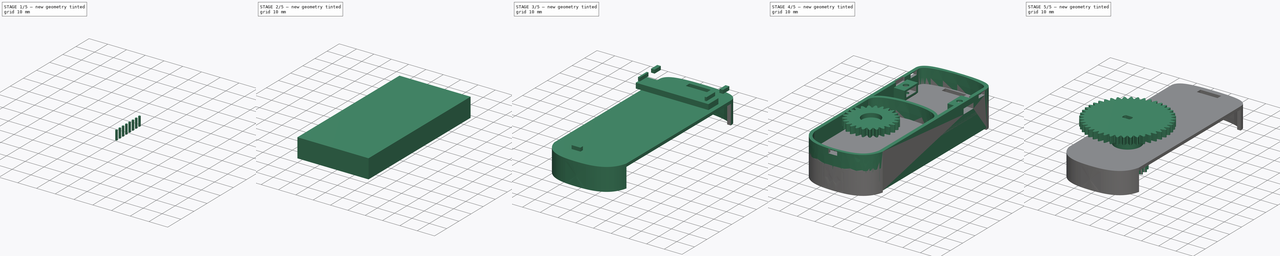
[diagram: build sequence overview — one tinted view per stage of 5, left to right]
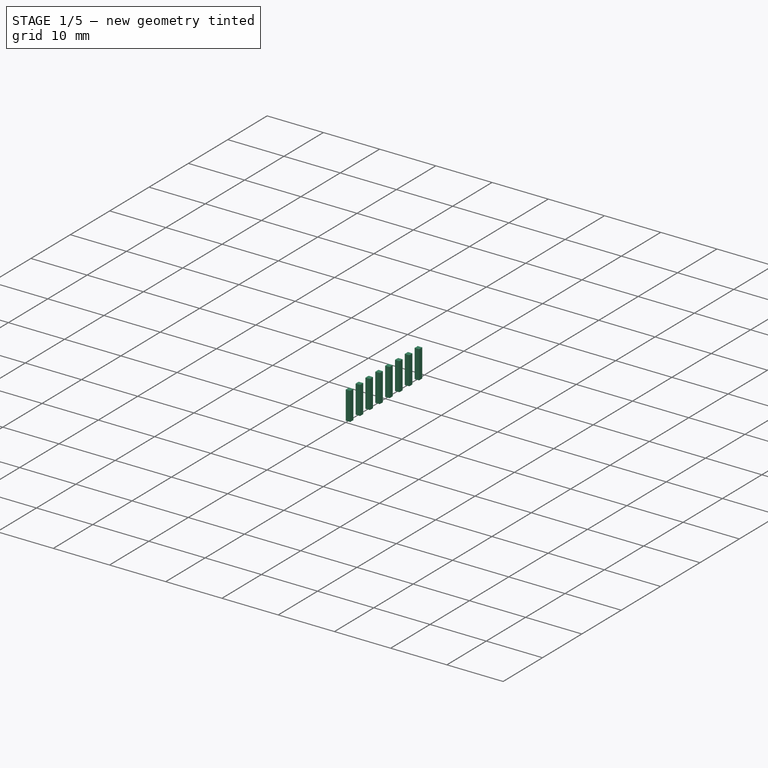
[diagram: stage 1 of 5 — iso view after this stage's code; geometry added in this stage tinted green]
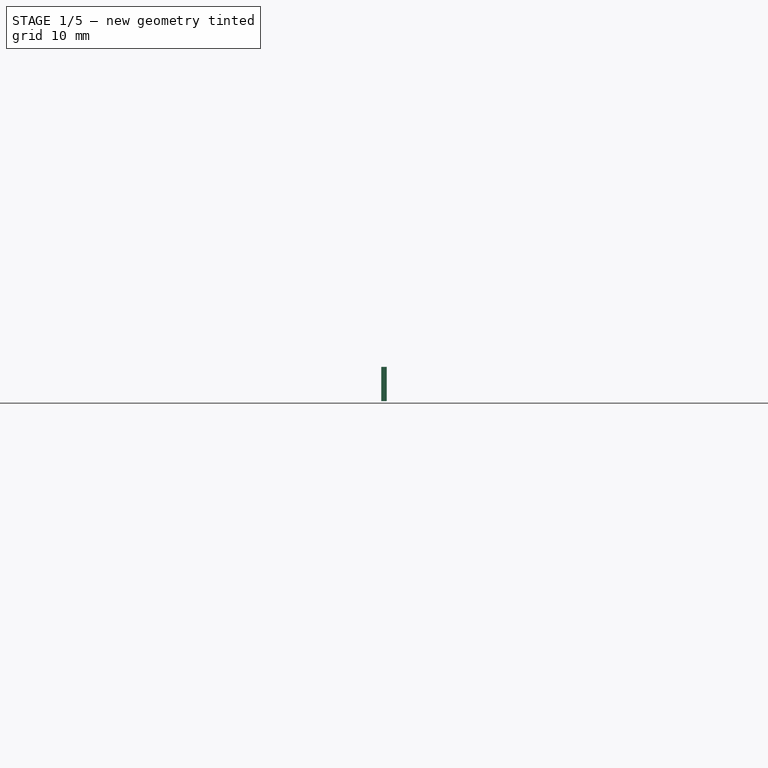
[diagram: stage 1 of 5 — front view after this stage's code; geometry added in this stage tinted green]
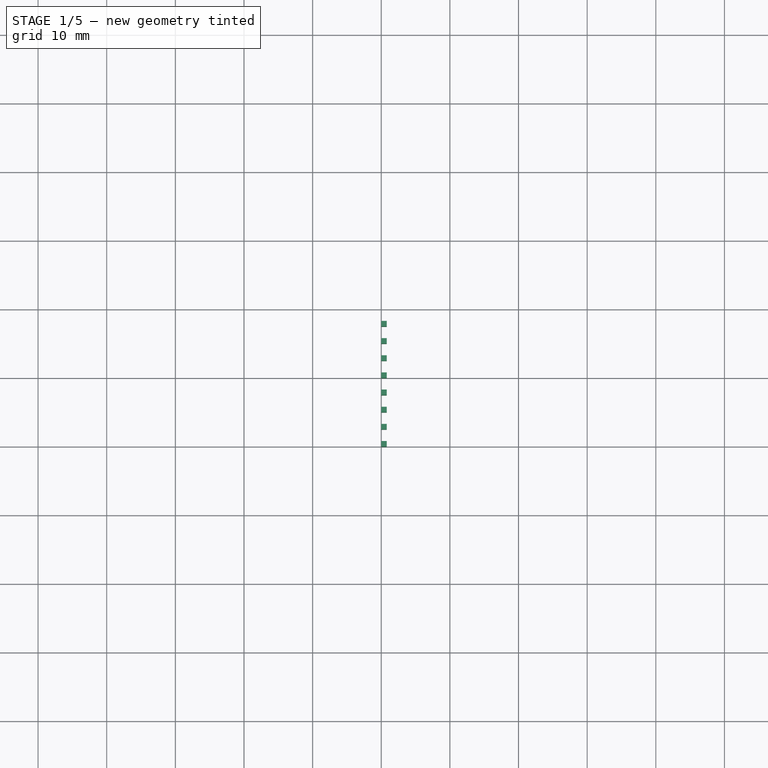
[diagram: stage 1 of 5 — top view after this stage's code; geometry added in this stage tinted green]
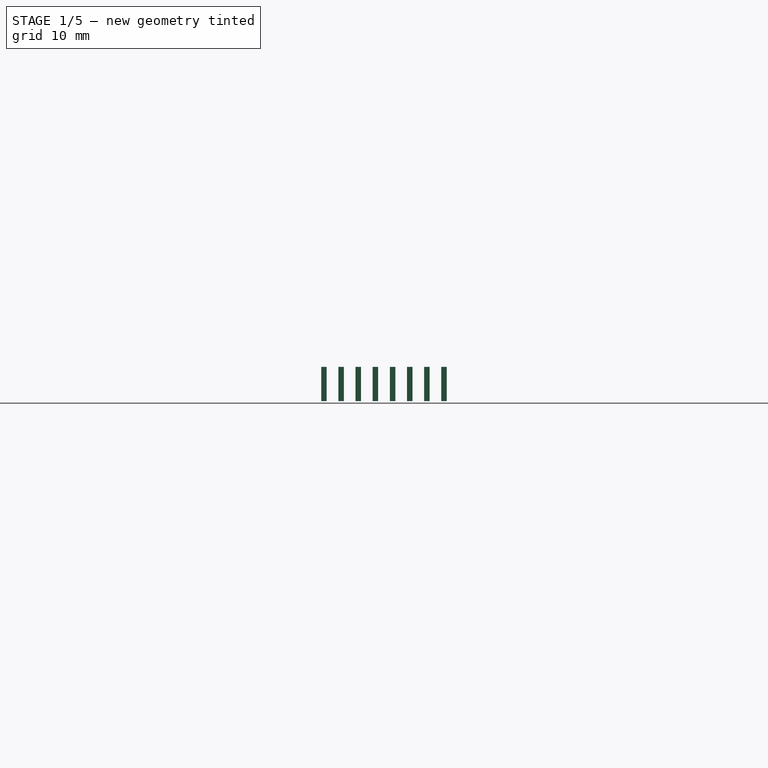
[diagram: stage 1 of 5 — right view after this stage's code; geometry added in this stage tinted green]
FCSTD DOCUMENT  (FreeCAD 0.19R24291 (Git))
Label: blind motor housing - b
License: All rights reserved
LicenseURL: http://en.wikipedia.org/wiki/All_rights_reserved
objects: Part::Box×81, PartDesign::Body×35, App::Part×20, PartDesign::FeatureBase×14, Part::Cylinder×11, Part::Cut×10, Sketcher::SketchObject×9, PartDesign::Pad×9, PartDesign::AdditiveCylinder×6, PartDesign::FeaturePython×5, Part::FeaturePython×3, Part::Fuse×2, Part::Wedge×2, PartDesign::AdditiveBox×2, Part::MultiFuse×2, Part::Feature×1, Image::ImagePlane×1, Part::Common×1
note: 210 computed .brp shape members not serialized (recipe doc carries the construction recipe); baked Part::Feature solids carry a one-line shape summary decoded from their .brp

FEATURE [Part::Box] Box058  label="Cube053"
  AttacherType = Attacher::AttachEngine3D
  Height = 5
  Length = 0.8
  Placement = pos=(0,17.5,0) rot=(0,0,1;0rad)
  Width = 0.8
FEATURE [Part::Box] Box059  label="Cube054"
  AttacherType = Attacher::AttachEngine3D
  Height = 5
  Length = 0.8
  Placement = pos=(0,15,0) rot=(0,0,1;0rad)
  Width = 0.8
FEATURE [Part::Box] Box061  label="Cube056"
  AttacherType = Attacher::AttachEngine3D
  Height = 5
  Length = 0.8
  Placement = pos=(0,10,0) rot=(0,0,1;0rad)
  Width = 0.8
FEATURE [Part::Box] Box065  label="Cube060"
  AttacherType = Attacher::AttachEngine3D
  Height = 5
  Length = 0.8
  Placement = pos=(0,12.5,0) rot=(0,0,1;0rad)
  Width = 0.8
FEATURE [Part::Box] Box066  label="Cube061"
  AttacherType = Attacher::AttachEngine3D
  Height = 5
  Length = 0.8
  Placement = pos=(0,5,0) rot=(0,0,1;0rad)
  Width = 0.8
FEATURE [Part::Box] Box070  label="Cube065"
  AttacherType = Attacher::AttachEngine3D
  Height = 5
  Length = 0.8
  Placement = pos=(0,2.5,0) rot=(0,0,1;0rad)
  Width = 0.8
FEATURE [App::Part] Part019  label="drv8825_pins_left"
  Group = -> [Box053,Box070,Box066,Box054,Box061,Box065,Box059,Box058]
  Origin = -> Origin087
  Placement = pos=(-6.5,0,0) rot=(0,0,1;0rad)
FEATURE [Part::Box] Box071  label="Cube066"
  AttacherType = Attacher::AttachEngine3D
  Height = 5
  Length = 0.8
  Placement = pos=(0,17.5,0) rot=(0,0,1;0rad)
  Width = 0.8
FEATURE [Part::Box] Box072  label="Cube067"
  AttacherType = Attacher::AttachEngine3D
  Height = 5
  Length = 0.8
  Placement = pos=(0,10,0) rot=(0,0,1;0rad)
  Width = 0.8
FEATURE [Part::Box] Box073  label="Cube068"
  AttacherType = Attacher::AttachEngine3D
  Height = 5
  Length = 0.8
  Placement = pos=(0,7.5,0) rot=(0,0,1;0rad)
  Width = 0.8
FEATURE [Part::Box] Box074  label="Cube069"
  AttacherType = Attacher::AttachEngine3D
  Height = 5
  Length = 0.8
  Placement = pos=(0,15,0) rot=(0,0,1;0rad)
  Width = 0.8
FEATURE [Part::Box] Box075  label="Cube070"
  AttacherType = Attacher::AttachEngine3D
  Height = 5
  Length = 0.8
  Placement = pos=(0,12.5,0) rot=(0,0,1;0rad)
  Width = 0.8
FEATURE [Part::Box] Box076  label="Cube071"
  AttacherType = Attacher::AttachEngine3D
  Height = 5
  Length = 0.8
  Placement = pos=(0,2.5,0) rot=(0,0,1;0rad)
  Width = 0.8
FEATURE [Part::Box] Box077  label="Cube072"
  AttacherType = Attacher::AttachEngine3D
  Height = 5
  Length = 0.8
  Placement = pos=(0,5,0) rot=(0,0,1;0rad)
  Width = 0.8
FEATURE [Part::Box] Box078  label="Cube073"
  AttacherType = Attacher::AttachEngine3D
  Height = 5
  Length = 0.8
  Width = 0.8
FEATURE [App::Part] Part021  label="drv8825_pins_right"
  Group = -> [Box078,Box076,Box077,Box073,Box072,Box075,Box074,Box071]
  Origin = -> Origin089
  Placement = pos=(6.5,0,0) rot=(0,0,1;0rad)
FEATURE [Part::Box] Box079  label="Cube074"
  AttacherType = Attacher::AttachEngine3D
  Height = 5
  Length = 0.8
  Placement = pos=(0,17.5,0) rot=(0,0,1;0rad)
  Width = 0.8
FEATURE [Part::Box] Box080  label="Cube075"
  AttacherType = Attacher::AttachEngine3D
  Height = 5
  Length = 0.8
  Placement = pos=(0,10,0) rot=(0,0,1;0rad)
  Width = 0.8
FEATURE [Part::Box] Box081  label="Cube076"
  AttacherType = Attacher::AttachEngine3D
  Height = 5
  Length = 0.8
  Placement = pos=(0,7.5,0) rot=(0,0,1;0rad)
  Width = 0.8
FEATURE [Part::Box] Box082  label="Cube077"
  AttacherType = Attacher::AttachEngine3D
  Height = 5
  Length = 0.8
  Placement = pos=(0,15,0) rot=(0,0,1;0rad)
  Width = 0.8
FEATURE [Part::Box] Box083  label="Cube078"
  AttacherType = Attacher::AttachEngine3D
  Height = 5
  Length = 0.8
  Placement = pos=(0,12.5,0) rot=(0,0,1;0rad)
  Width = 0.8
FEATURE [Part::Box] Box084  label="Cube079"
  AttacherType = Attacher::AttachEngine3D
  Height = 5
  Length = 0.8
  Placement = pos=(0,2.5,0) rot=(0,0,1;0rad)
  Width = 0.8
FEATURE [Part::Box] Box085  label="Cube080"
  AttacherType = Attacher::AttachEngine3D
  Height = 5
  Length = 0.8
  Placement = pos=(0,5,0) rot=(0,0,1;0rad)
  Width = 0.8
FEATURE [Part::Box] Box086  label="Cube081"
  AttacherType = Attacher::AttachEngine3D
  Height = 5
  Length = 0.8
  Width = 0.8
FEATURE [App::Part] Part022  label="drv8825_pins_left001"
  Group = -> [Box086,Box084,Box085,Box081,Box080,Box083,Box082,Box079]
  Origin = -> Origin090
  Placement = pos=(-9.5,0,0) rot=(0,0,1;0rad)
FEATURE [Part::Box] Box087  label="Cube082"
  AttacherType = Attacher::AttachEngine3D
  Height = 5
  Length = 0.8
  Placement = pos=(0,2.5,0) rot=(0,0,1;0rad)
  Width = 0.8
FEATURE [Part::Box] Box088  label="Cube083"
  AttacherType = Attacher::AttachEngine3D
  Height = 5
  Length = 0.8
  Placement = pos=(0,17.5,0) rot=(0,0,1;0rad)
  Width = 0.8
FEATURE [Part::Box] Box089  label="Cube084"
  AttacherType = Attacher::AttachEngine3D
  Height = 5
  Length = 0.8
  Placement = pos=(0,12.5,0) rot=(0,0,1;0rad)
  Width = 0.8
FEATURE [Part::Box] Box090  label="Cube085"
  AttacherType = Attacher::AttachEngine3D
  Height = 5
  Length = 0.8
  Placement = pos=(0,15,0) rot=(0,0,1;0rad)
  Width = 0.8
FEATURE [Part::Box] Box091  label="Cube086"
  AttacherType = Attacher::AttachEngine3D
  Height = 5
  Length = 0.8
  Placement = pos=(0,10,0) rot=(0,0,1;0rad)
  Width = 0.8
FEATURE [Part::Box] Box092  label="Cube087"
  AttacherType = Attacher::AttachEngine3D
  Height = 5
  Length = 0.8
  Placement = pos=(0,5,0) rot=(0,0,1;0rad)
  Width = 0.8
FEATURE [Part::Box] Box093  label="Cube088"
  AttacherType = Attacher::AttachEngine3D
  Height = 5
  Length = 0.8
  Width = 0.8
FEATURE [Part::Box] Box094  label="Cube089"
  AttacherType = Attacher::AttachEngine3D
  Height = 5
  Length = 0.8
  Placement = pos=(0,7.5,0) rot=(0,0,1;0rad)
  Width = 0.8
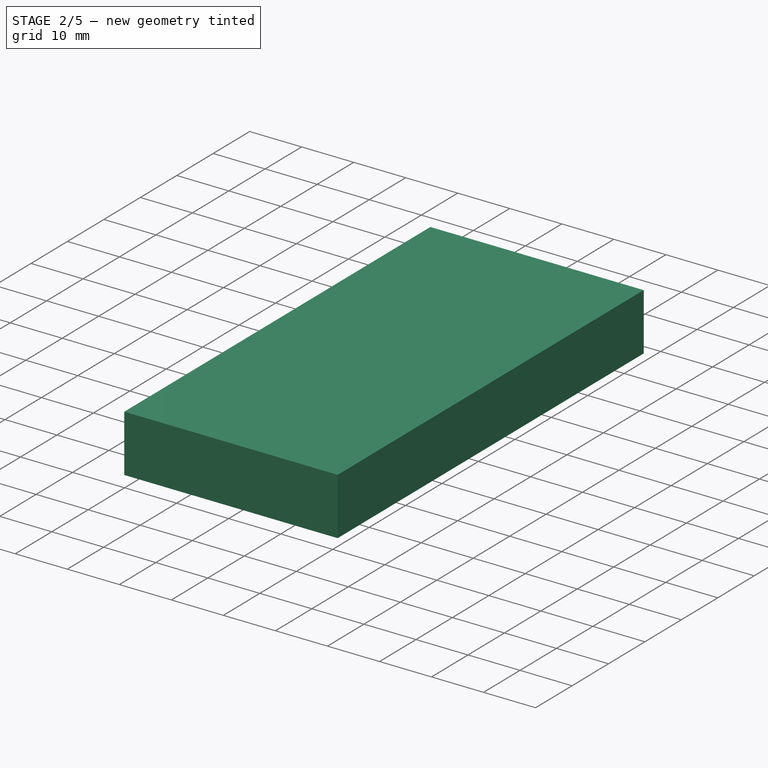
[diagram: stage 2 of 5 — iso view after this stage's code; geometry added in this stage tinted green]
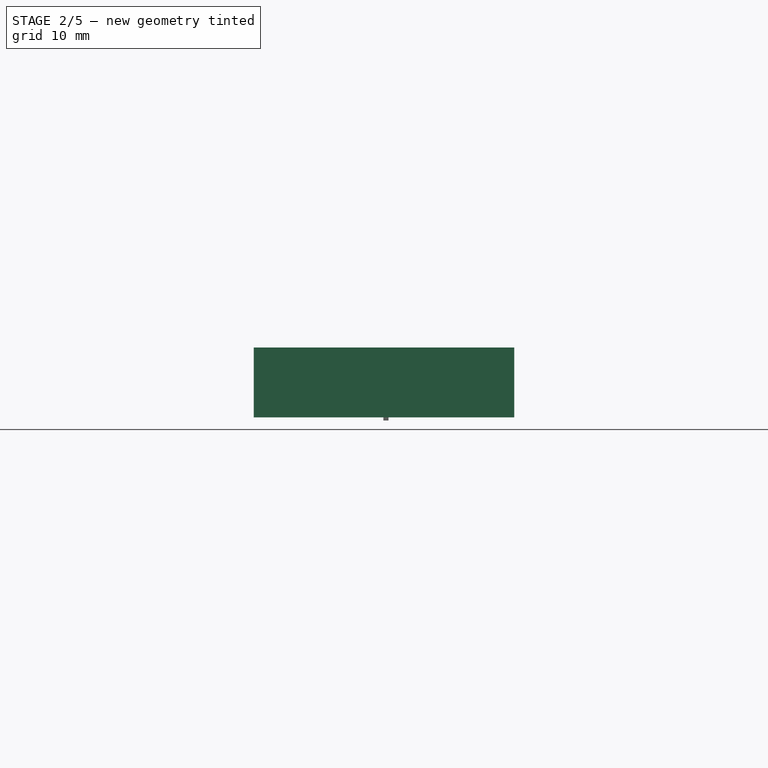
[diagram: stage 2 of 5 — front view after this stage's code; geometry added in this stage tinted green]
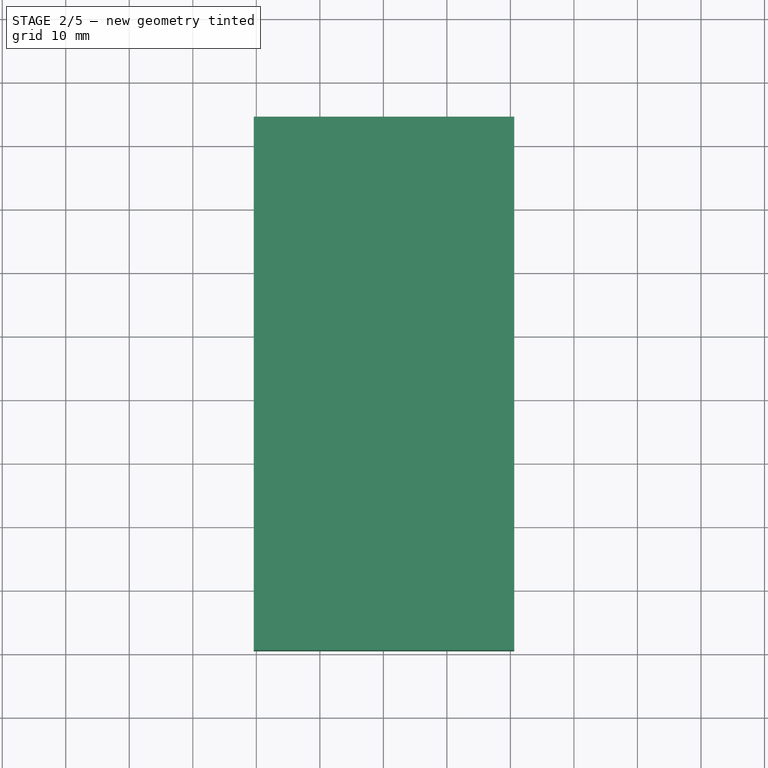
[diagram: stage 2 of 5 — top view after this stage's code; geometry added in this stage tinted green]
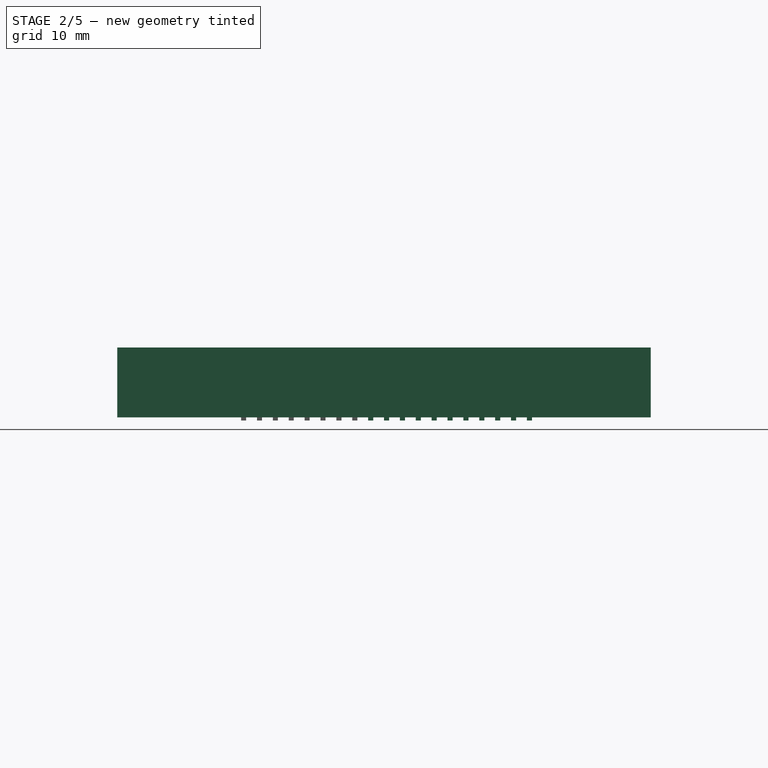
[diagram: stage 2 of 5 — right view after this stage's code; geometry added in this stage tinted green]
FEATURE [Part::Box] Box026  label="Cube021"
  AttacherType = Attacher::AttachEngine3D
  Height = 5
  Length = 0.8
  Placement = pos=(0,30,0) rot=(0,0,1;0rad)
  Width = 0.8
FEATURE [Part::Box] Box027  label="Cube022"
  AttacherType = Attacher::AttachEngine3D
  Height = 5
  Length = 0.8
  Placement = pos=(0,32.5,0) rot=(0,0,1;0rad)
  Width = 0.8
FEATURE [Part::Box] Box028  label="Cube023"
  AttacherType = Attacher::AttachEngine3D
  Height = 5
  Length = 0.8
  Placement = pos=(0,35,0) rot=(0,0,1;0rad)
  Width = 0.8
FEATURE [Part::Box] Box029  label="Cube024"
  AttacherType = Attacher::AttachEngine3D
  Height = 5
  Length = 0.8
  Placement = pos=(0,37.5,0) rot=(0,0,1;0rad)
  Width = 0.8
FEATURE [Part::Box] Box030  label="Cube025"
  AttacherType = Attacher::AttachEngine3D
  Height = 5
  Length = 0.8
  Placement = pos=(0,40,0) rot=(0,0,1;0rad)
  Width = 0.8
FEATURE [Part::Box] Box031  label="Cube026"
  AttacherType = Attacher::AttachEngine3D
  Height = 5
  Length = 0.8
  Placement = pos=(0,42.5,0) rot=(0,0,1;0rad)
  Width = 0.8
FEATURE [Part::Box] Box032  label="Cube027"
  AttacherType = Attacher::AttachEngine3D
  Height = 5
  Length = 0.8
  Placement = pos=(0,45,0) rot=(0,0,1;0rad)
  Width = 0.8
FEATURE [App::Part] Part017  label="esp8266_pin_holes_right"
  Group = -> [Box014,Box015,Box016,Box017,Box018,Box019,Box020,Box021,Box022,Box023,Box024,Box025,Box026,Box027,Box028,Box029,Box030,Box031,Box032]
  Origin = -> Origin085
  Placement = pos=(-14.5,0,0) rot=(0,0,1;0rad)
FEATURE [Part::Box] Box033  label="Cube028"
  AttacherType = Attacher::AttachEngine3D
  Height = 5
  Length = 0.8
  Width = 0.8
FEATURE [Part::Box] Box034  label="Cube029"
  AttacherType = Attacher::AttachEngine3D
  Height = 5
  Length = 0.8
  Placement = pos=(0,7.5,0) rot=(0,0,1;0rad)
  Width = 0.8
FEATURE [Part::Box] Box035  label="Cube030"
  AttacherType = Attacher::AttachEngine3D
  Height = 5
  Length = 0.8
  Placement = pos=(0,42.5,0) rot=(0,0,1;0rad)
  Width = 0.8
FEATURE [Part::Box] Box036  label="Cube031"
  AttacherType = Attacher::AttachEngine3D
  Height = 5
  Length = 0.8
  Placement = pos=(0,20,0) rot=(0,0,1;0rad)
  Width = 0.8
FEATURE [Part::Box] Box037  label="Cube032"
  AttacherType = Attacher::AttachEngine3D
  Height = 5
  Length = 0.8
  Placement = pos=(0,27.5,0) rot=(0,0,1;0rad)
  Width = 0.8
FEATURE [Part::Box] Box038  label="Cube033"
  AttacherType = Attacher::AttachEngine3D
  Height = 5
  Length = 0.8
  Placement = pos=(0,17.5,0) rot=(0,0,1;0rad)
  Width = 0.8
FEATURE [Part::Box] Box039  label="Cube034"
  AttacherType = Attacher::AttachEngine3D
  Height = 5
  Length = 0.8
  Placement = pos=(0,15,0) rot=(0,0,1;0rad)
  Width = 0.8
FEATURE [Part::Box] Box040  label="Cube035"
  AttacherType = Attacher::AttachEngine3D
  Height = 5
  Length = 0.8
  Placement = pos=(0,45,0) rot=(0,0,1;0rad)
  Width = 0.8
FEATURE [Part::Box] Box041  label="Cube036"
  AttacherType = Attacher::AttachEngine3D
  Height = 5
  Length = 0.8
  Placement = pos=(0,10,0) rot=(0,0,1;0rad)
  Width = 0.8
FEATURE [Part::Box] Box042  label="Cube037"
  AttacherType = Attacher::AttachEngine3D
  Height = 5
  Length = 0.8
  Placement = pos=(0,32.5,0) rot=(0,0,1;0rad)
  Width = 0.8
FEATURE [Part::Box] Box043  label="Cube038"
  AttacherType = Attacher::AttachEngine3D
  Height = 5
  Length = 0.8
  Placement = pos=(0,35,0) rot=(0,0,1;0rad)
  Width = 0.8
FEATURE [Part::Box] Box044  label="Cube039"
  AttacherType = Attacher::AttachEngine3D
  Height = 5
  Length = 0.8
  Placement = pos=(0,40,0) rot=(0,0,1;0rad)
  Width = 0.8
FEATURE [Part::Box] Box045  label="Cube040"
  AttacherType = Attacher::AttachEngine3D
  Height = 5
  Length = 0.8
  Placement = pos=(0,12.5,0) rot=(0,0,1;0rad)
  Width = 0.8
FEATURE [Part::Box] Box046  label="Cube041"
  AttacherType = Attacher::AttachEngine3D
  Height = 5
  Length = 0.8
  Placement = pos=(0,5,0) rot=(0,0,1;0rad)
  Width = 0.8
FEATURE [Part::Box] Box047  label="Cube042"
  AttacherType = Attacher::AttachEngine3D
  Height = 5
  Length = 0.8
  Placement = pos=(0,30,0) rot=(0,0,1;0rad)
  Width = 0.8
FEATURE [Part::Box] Box048  label="Cube043"
  AttacherType = Attacher::AttachEngine3D
  Height = 5
  Length = 0.8
  Placement = pos=(0,25,0) rot=(0,0,1;0rad)
  Width = 0.8
FEATURE [Part::Box] Box049  label="Cube044"
  AttacherType = Attacher::AttachEngine3D
  Height = 5
  Length = 0.8
  Placement = pos=(0,37.5,0) rot=(0,0,1;0rad)
  Width = 0.8
FEATURE [Part::Box] Box050  label="Cube045"
  AttacherType = Attacher::AttachEngine3D
  Height = 5
  Length = 0.8
  Placement = pos=(0,2.5,0) rot=(0,0,1;0rad)
  Width = 0.8
FEATURE [Part::Box] Box051  label="Cube046"
  AttacherType = Attacher::AttachEngine3D
  Height = 5
  Length = 0.8
  Placement = pos=(0,22.5,0) rot=(0,0,1;0rad)
  Width = 0.8
FEATURE [App::Part] Part018  label="esp8266_pin_holes_left"
  Group = -> [Box033,Box050,Box046,Box034,Box041,Box045,Box039,Box038,Box036,Box051,Box048,Box037,Box047,Box042,Box043,Box049,Box044,Box035,Box040]
  Origin = -> Origin086
  Placement = pos=(13.5,0,0) rot=(0,0,1;0rad)
FEATURE [App::Part] Part016  label="esp8266_pin_holes"
  Group = -> [Part017,Part018]
  Origin = -> Origin084
  Placement = pos=(0,-18.9,11.1) rot=(0,0,1;0rad)
FEATURE [Part::Box] Box052  label="Cube047"
  AttacherType = Attacher::AttachEngine3D
  Height = 11
  Length = 41
  Placement = pos=(-20.4,-19.5,0.5) rot=(0,0,1;0rad)
  Width = 84
FEATURE [Part::Box] Box053  label="Cube048"
  AttacherType = Attacher::AttachEngine3D
  Height = 5
  Length = 0.8
  Width = 0.8
FEATURE [Part::Box] Box054  label="Cube049"
  AttacherType = Attacher::AttachEngine3D
  Height = 5
  Length = 0.8
  Placement = pos=(0,7.5,0) rot=(0,0,1;0rad)
  Width = 0.8
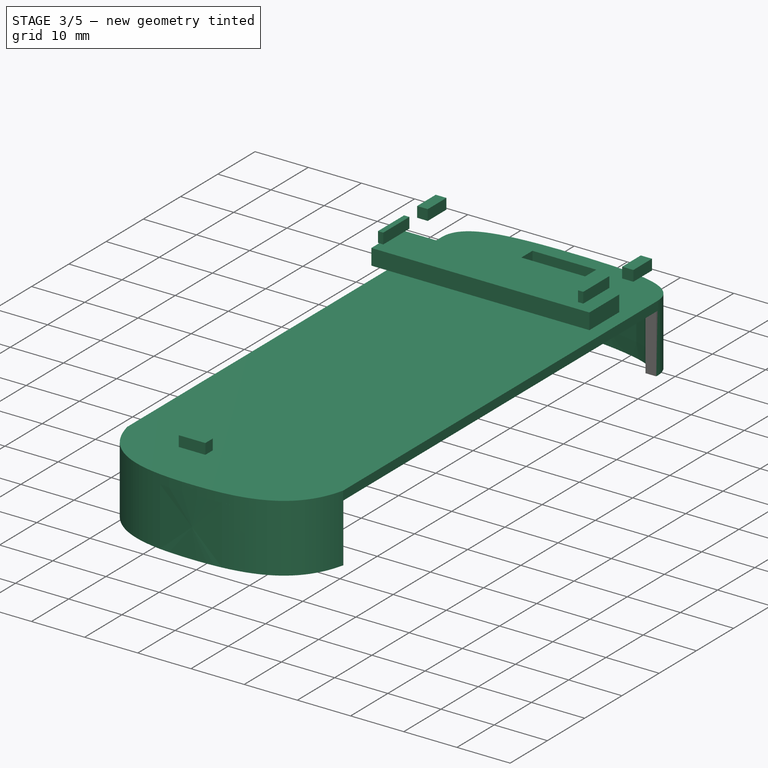
[diagram: stage 3 of 5 — iso view after this stage's code; geometry added in this stage tinted green]
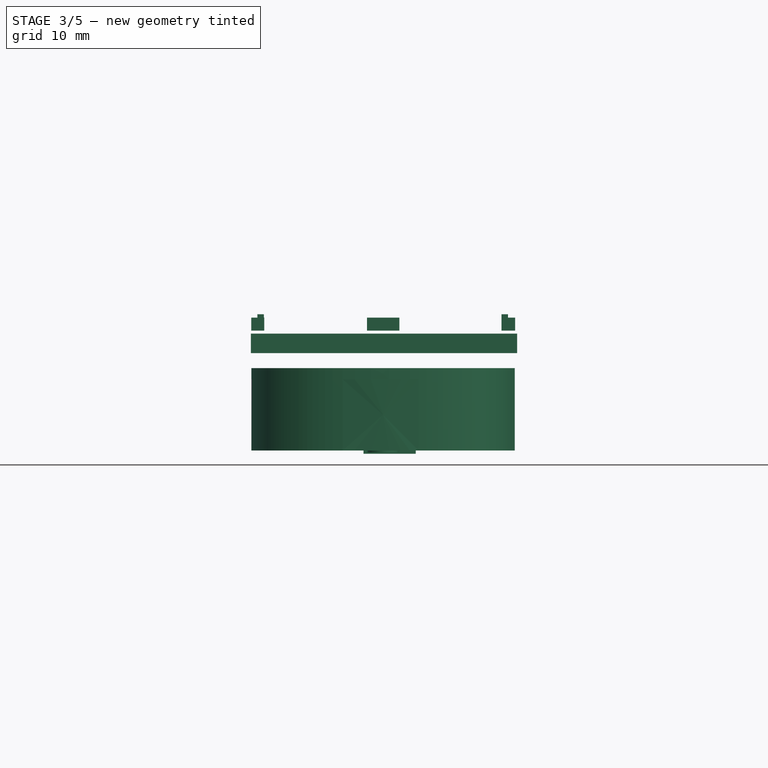
[diagram: stage 3 of 5 — front view after this stage's code; geometry added in this stage tinted green]
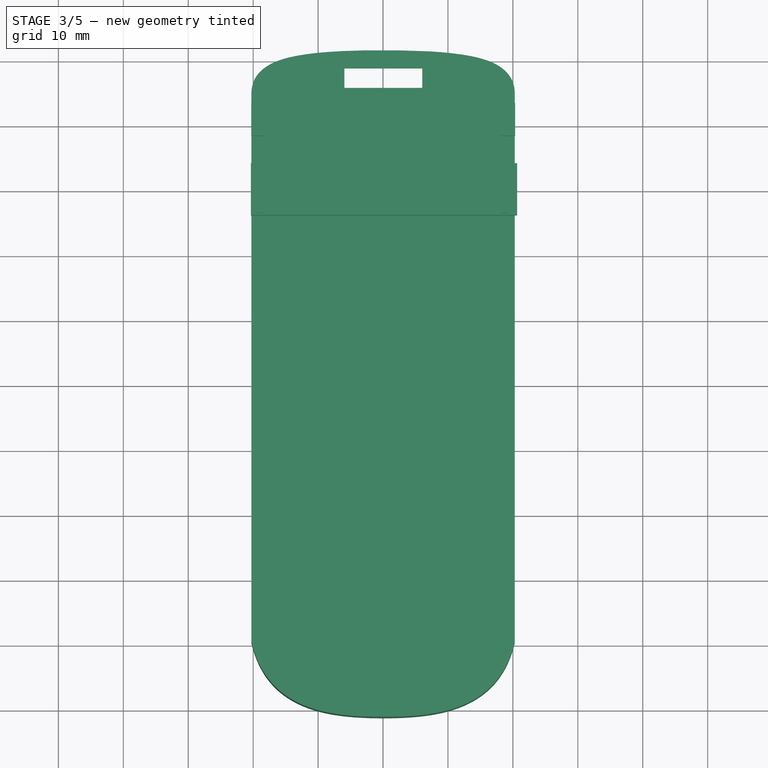
[diagram: stage 3 of 5 — top view after this stage's code; geometry added in this stage tinted green]
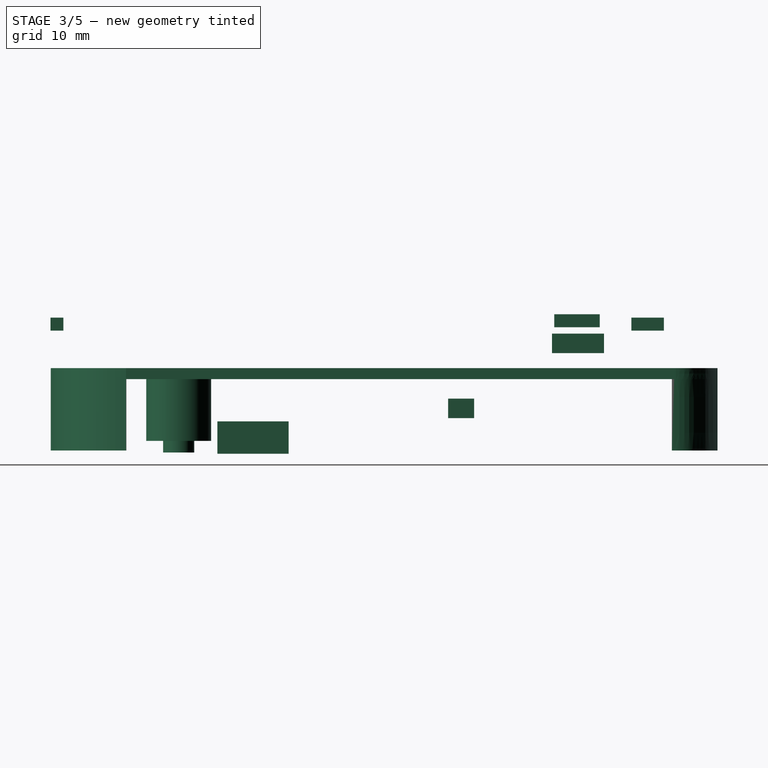
[diagram: stage 3 of 5 — right view after this stage's code; geometry added in this stage tinted green]
FEATURE [PartDesign::Body] Body046
  BaseFeature = -> Box002
  Group = -> [BaseFeature009]
  Origin = -> Origin058
  Placement = pos=(-3,-4,1) rot=(0,0,1;0rad)
  Tip = -> BaseFeature009
FEATURE [PartDesign::Body] Body047
  BaseFeature = -> Wedge002
  Group = -> [BaseFeature010]
  Origin = -> Origin059
  Placement = pos=(-5.95,-5.5,1e-15) rot=(-1,0,0;1.5708rad)
  Tip = -> BaseFeature010
FEATURE [PartDesign::Body] Body048
  Group = -> [Sketch008,Pad008]
  Origin = -> Origin061
  Tip = -> Pad008
FEATURE [Part::Box] Box004  label="Cube004"
  AttacherType = Attacher::AttachEngine3D
  Height = 3
  Length = 12
  Width = 4
FEATURE [PartDesign::FeatureBase] BaseFeature013
  BaseFeature = -> Box004
FEATURE [PartDesign::Body] Body052  label="clip_cutout"
  BaseFeature = -> Box004
  Group = -> [BaseFeature013]
  Origin = -> Origin066
  Placement = pos=(-6.1,30.05,5.5) rot=(0,0,1;0rad)
  Tip = -> BaseFeature013
FEATURE [Part::Box] Box005  label="Cube005"
  AttacherType = Attacher::AttachEngine3D
  Height = 3
  Length = 41
  Width = 8
FEATURE [PartDesign::FeatureBase] BaseFeature014
  BaseFeature = -> Box005
FEATURE [PartDesign::Body] Body054  label="outer_wall"
  Group = -> [Sketch010,Pad010]
  Origin = -> Origin072
  Placement = pos=(0,0,1.5) rot=(0,0,1;0rad)
  Tip = -> Pad010
FEATURE [Sketcher::SketchObject] Sketch011
  FullyConstrained = false
  MapMode = 5
  Support = -> [XY_Plane083]
  sketch-geometry (52):
    g0: LineSegment StartX=-18.3512 StartY=64.8653 StartZ=0 EndX=-18.3512 EndY=-19.5493 EndZ=0
    g1: LineSegment StartX=18.2843 StartY=64.8615 StartZ=0 EndX=18.2843 EndY=-19.5422 EndZ=0
    g2-g8: Circle x7 (B-spline internal-alignment scaffolding for g9; pole/knot coordinates omitted)
    g9: BSplineCurve PolesCount=7 KnotsCount=5 Degree=3 IsPeriodic=0
    g10-g14: GeomPoint x5 (B-spline internal-alignment scaffolding for g9; pole/knot coordinates omitted)
    g15-g21: Circle x7 (B-spline internal-alignment scaffolding for g22; pole/knot coordinates omitted)
    g22: BSplineCurve PolesCount=7 KnotsCount=5 Degree=3 IsPeriodic=0
    g23-g27: GeomPoint x5 (B-spline internal-alignment scaffolding for g22; pole/knot coordinates omitted)
    g28: LineSegment StartX=20.2908 StartY=64.8628 StartZ=0 EndX=20.2908 EndY=-19.5607 EndZ=0
    g29: LineSegment StartX=-20.2752 StartY=64.8046 StartZ=0 EndX=-20.2752 EndY=-19.5842 EndZ=0
    g30-g34: Circle x5 (B-spline internal-alignment scaffolding for g37; pole/knot coordinates omitted)
    g35: Circle CenterX=20.2934 CenterY=66.9981 CenterZ=0 NormalX=0 NormalY=0 NormalZ=1 AngleXU=0 Radius=1
    g36: Circle CenterX=20.2908 CenterY=64.8628 CenterZ=0 NormalX=0 NormalY=0 NormalZ=1 AngleXU=0 Radius=1
    g37: BSplineCurve PolesCount=7 KnotsCount=5 Degree=3 IsPeriodic=0
    g38: GeomPoint X=-20.2752 Y=64.8046 Z=0
    g39: GeomPoint X=-15.5518 Y=70.1328 Z=0
    g40: GeomPoint X=0.00361733 Y=71.5431 Z=0
    g41: GeomPoint X=15.5679 Y=70.1332 Z=0
    g42: GeomPoint X=20.2908 Y=64.8628 Z=0
    g43-g47: Circle x5 (B-spline internal-alignment scaffolding for g48; pole/knot coordinates omitted)
    g48: BSplineCurve PolesCount=5 KnotsCount=3 Degree=3 IsPeriodic=0
    g49: GeomPoint X=20.2908 Y=-19.5607 Z=0
    g50: GeomPoint X=0.00774 Y=-31.1619 Z=0
    g51: GeomPoint X=-20.2752 Y=-19.5842 Z=0
  constraints (51):
    c: Vertical(g0)
    c: Vertical(g1)
    c: Coincident(g9,g0)
    c: Weight(g2) = 1
    c: Equal(g2,g3)
    c: Equal(g2,g4)
    c: Equal(g2,g5)
    c: PointOnObject(g5,g-2)
    c: Equal(g2,g6)
    c: Equal(g2,g7)
    c: Equal(g2,g8)
    c: Coincident(g9,g1)
    c: InternalAlignment(g2-g8 -> g9) x7
    c: InternalAlignment(g10-g14 -> g9) x5
    c: Coincident(g22,g0)
    c: Weight(g15) = 1
    c: Equal(g15,g16)
    c: Equal(g15,g17)
    c: Equal(g15,g18)
    c: PointOnObject(g18,g-2)
    c: Equal(g15,g19)
    c: Equal(g15,g20)
    c: Equal(g15,g21)
    c: Coincident(g22,g1)
    c: InternalAlignment(g15-g21 -> g22) x7
    c: InternalAlignment(g23-g27 -> g22) x5
    c: Vertical(g28)
    c: Vertical(g29)
    c: Coincident(g37,g29)
    c: Weight(g30) = 1
    c: Equal(g30,g31)
    c: Equal(g30,g32)
    c: Equal(g30,g33)
    c: PointOnObject(g33,g-2)
    c: Equal(g30,g34)
    c: Equal(g30,g35)
    c: Equal(g30,g36)
    c: Coincident(g37,g28)
    c: InternalAlignment(g30-g34 -> g37) x5
    c: Coincident(g48,g28)
    c: Weight(g43) = 1
    c: Equal(g43,g44)
    c: Equal(g43,g45)
    c: PointOnObject(g45,g-2)
    c: Equal(g43,g46)
    c: Equal(g43,g47)
    c: Coincident(g48,g29)
    c: InternalAlignment(g43-g47 -> g48) x5
    c: InternalAlignment(g49,g48)
    c: InternalAlignment(g50,g48)
    c: InternalAlignment(g51,g48)
FEATURE [PartDesign::Pad] Pad011
  Direction = (1,1,1)
  Length = 11
  Length2 = 100
  Profile = -> Sketch011
  Type = 0
FEATURE [PartDesign::Body] Body055  label="housing_middle_wall"
  Group = -> [Sketch011,Pad011]
  Origin = -> Origin073
  Placement = pos=(0,0,0.5) rot=(0,0,1;0rad)
  Tip = -> Pad011
FEATURE [Sketcher::SketchObject] Sketch012
  FullyConstrained = false
  MapMode = 5
  Support = -> [XY_Plane084]
  sketch-geometry (24):
    g0: LineSegment StartX=20.2908 StartY=64.8628 StartZ=0 EndX=20.2908 EndY=-19.5607 EndZ=0
    g1: LineSegment StartX=-20.2752 StartY=64.8046 StartZ=0 EndX=-20.2752 EndY=-19.5842 EndZ=0
    g2-g6: Circle x5 (B-spline internal-alignment scaffolding for g9; pole/knot coordinates omitted)
    g7: Circle CenterX=20.2934 CenterY=66.9981 CenterZ=0 NormalX=0 NormalY=0 NormalZ=1 AngleXU=0 Radius=1
    g8: Circle CenterX=20.2908 CenterY=64.8628 CenterZ=0 NormalX=0 NormalY=0 NormalZ=1 AngleXU=0 Radius=1
    g9: BSplineCurve PolesCount=7 KnotsCount=5 Degree=3 IsPeriodic=0
    g10: GeomPoint X=-20.2752 Y=64.8046 Z=0
    g11: GeomPoint X=-15.5518 Y=70.1328 Z=0
    g12: GeomPoint X=0.00361733 Y=71.5431 Z=0
    g13: GeomPoint X=15.5679 Y=70.1332 Z=0
    g14: GeomPoint X=20.2908 Y=64.8628 Z=0
    g15-g19: Circle x5 (B-spline internal-alignment scaffolding for g20; pole/knot coordinates omitted)
    g20: BSplineCurve PolesCount=5 KnotsCount=3 Degree=3 IsPeriodic=0
    g21: GeomPoint X=20.2908 Y=-19.5607 Z=0
    g22: GeomPoint X=0.00774 Y=-31.1619 Z=0
    g23: GeomPoint X=-20.2752 Y=-19.5842 Z=0
  constraints (25):
    c: Vertical(g0)
    c: Vertical(g1)
    c: Coincident(g9,g1)
    c: Weight(g2) = 1
    c: Equal(g2,g3)
    c: Equal(g2,g4)
    c: Equal(g2,g5)
    c: PointOnObject(g5,g-2)
    c: Equal(g2,g6)
    c: Equal(g2,g7)
    c: Equal(g2,g8)
    c: Coincident(g9,g0)
    c: InternalAlignment(g2-g6 -> g9) x5
    c: Coincident(g20,g0)
    c: Weight(g15) = 1
    c: Equal(g15,g16)
    c: Equal(g15,g17)
    c: PointOnObject(g17,g-2)
    c: Equal(g15,g18)
    c: Equal(g15,g19)
    c: Coincident(g20,g1)
    c: InternalAlignment(g15-g19 -> g20) x5
    c: InternalAlignment(g21,g20)
    c: InternalAlignment(g22,g20)
    c: InternalAlignment(g23,g20)
FEATURE [PartDesign::Pad] Pad012
  Direction = (1,1,1)
  Length = 1.7
  Length2 = 100
  Profile = -> Sketch012
  Type = 0
FEATURE [Part::Cylinder] Cylinder021  label="shaft_blind_motor_pin"
  Angle = 360
  AttacherType = Attacher::AttachEngine3D
  Height = 4
  Placement = pos=(0,-11.45,0.2) rot=(0,0,1;0rad)
  Radius = 2.4
FEATURE [Part::Cylinder] Cylinder022  label="shaft_blind_motor_support"
  Angle = 360
  AttacherType = Attacher::AttachEngine3D
  Height = 9.5
  Placement = pos=(0,-11.45,2) rot=(0,0,1;0rad)
  Radius = 5
FEATURE [Part::Cylinder] Cylinder023  label="stepper_motor_cutout"
  Angle = 360
  AttacherType = Attacher::AttachEngine3D
  Height = 5
  Placement = pos=(0,43.45,2) rot=(0,0,1;0rad)
  Radius = 24
FEATURE [Part::Box] Box006  label="Cube006"
  AttacherType = Attacher::AttachEngine3D
  Height = 2
  Length = 12
  Placement = pos=(-5.95,65.75,11.35) rot=(0,0,1;0rad)
  Width = 3
FEATURE [PartDesign::AdditiveBox] Box007
  AttacherType = Attacher::AttachEngine3D
  Height = 2
  Length = 1
  Width = 7
FEATURE [PartDesign::Body] Body058
  Group = -> [Box007]
  Origin = -> Origin076
  Placement = pos=(-19.35,46.4,19.5) rot=(0,0,1;0rad)
  Tip = -> Box007
FEATURE [PartDesign::AdditiveBox] Box008
  AttacherType = Attacher::AttachEngine3D
  Height = 2
  Length = 1
  Width = 7
FEATURE [Sketcher::SketchObject] Sketch013
  FullyConstrained = false
  MapMode = 5
  Support = -> [XY_Plane087]
  sketch-geometry (5):
    g0: LineSegment StartX=-3.0003 StartY=5.47457 StartZ=0 EndX=5.04519 EndY=5.47457 EndZ=0
    g1: LineSegment StartX=5.04519 StartY=5.47457 StartZ=0 EndX=5.04519 EndY=-5.5 EndZ=0
    g2: LineSegment StartX=5.04519 StartY=-5.5 StartZ=0 EndX=-3.0003 EndY=-5.5 EndZ=0
    g3: LineSegment StartX=-3.0003 StartY=-5.5 StartZ=0 EndX=-3.0003 EndY=5.47457 EndZ=0
    g4: Circle CenterX=0 CenterY=0 CenterZ=0 NormalX=0 NormalY=0 NormalZ=1 AngleXU=0 Radius=1.53097
  constraints (8):
    c: Horizontal(g0)
    c: Coincident(g1,g0)
    c: Vertical(g1)
    c: Horizontal(g2)
    c: Coincident(g3,g2)
    c: Coincident(g3,g0)
    c: Vertical(g3)
    c: Coincident(g4,g-1)
FEATURE [PartDesign::Pad] Pad013
  Direction = (1,1,1)
  Length = 5
  Length2 = 100
  Profile = -> Sketch013
  Type = 0
FEATURE [Part::Box] Box010  label="left_clip"
  AttacherType = Attacher::AttachEngine3D
  Height = 2
  Length = 2
  Placement = pos=(-20.3,58.275,18.975) rot=(0,0,1;0rad)
  Width = 5
FEATURE [Part::Box] Box011  label="right_clip"
  AttacherType = Attacher::AttachEngine3D
  Height = 2
  Length = 2.1
  Placement = pos=(18.25,58.275,18.975) rot=(0,0,1;0rad)
  Width = 5
FEATURE [Part::Box] Box012  label="front_clip"
  AttacherType = Attacher::AttachEngine3D
  Height = 2
  Length = 2
  Placement = pos=(-2.475,-29.2,18.975) rot=(0,0,-1;1.5708rad)
  Width = 5
FEATURE [Part::MultiFuse] Fusion003  label="fusion_housing_cutouts"
  Shapes = -> [Body052,Body053,Body057,Body058,Box010,Box011,Box012]
FEATURE [PartDesign::Body] Body009
  Group = -> [Cylinder,Cylinder003]
  Origin = -> Origin014
  Placement = pos=(0,0,13) rot=(0,0,1;0rad)
  Tip = -> Cylinder003
FEATURE [App::Part] Part013  label="blind_shaft_fixing"
  Group = -> [Cylinder021,Cylinder022]
  Origin = -> Origin081
  Placement = pos=(0,0.4,0) rot=(0,0,1;0rad)
FEATURE [App::Part] Part015  label="housing_middle_shell"
  Group = -> [Body055,Body056]
  Origin = -> Origin083
FEATURE [Part::Box] Box014  label="Cube009"
  AttacherType = Attacher::AttachEngine3D
  Height = 5
  Length = 0.8
  Width = 0.8
FEATURE [Part::Box] Box015  label="Cube010"
  AttacherType = Attacher::AttachEngine3D
  Height = 5
  Length = 0.8
  Placement = pos=(0,2.5,0) rot=(0,0,1;0rad)
  Width = 0.8
FEATURE [Part::Box] Box016  label="Cube011"
  AttacherType = Attacher::AttachEngine3D
  Height = 5
  Length = 0.8
  Placement = pos=(0,5,0) rot=(0,0,1;0rad)
  Width = 0.8
FEATURE [Part::Box] Box017  label="Cube012"
  AttacherType = Attacher::AttachEngine3D
  Height = 5
  Length = 0.8
  Placement = pos=(0,7.5,0) rot=(0,0,1;0rad)
  Width = 0.8
FEATURE [Part::Box] Box018  label="Cube013"
  AttacherType = Attacher::AttachEngine3D
  Height = 5
  Length = 0.8
  Placement = pos=(0,10,0) rot=(0,0,1;0rad)
  Width = 0.8
FEATURE [Part::Box] Box019  label="Cube014"
  AttacherType = Attacher::AttachEngine3D
  Height = 5
  Length = 0.8
  Placement = pos=(0,12.5,0) rot=(0,0,1;0rad)
  Width = 0.8
FEATURE [Part::Box] Box020  label="Cube015"
  AttacherType = Attacher::AttachEngine3D
  Height = 5
  Length = 0.8
  Placement = pos=(0,15,0) rot=(0,0,1;0rad)
  Width = 0.8
FEATURE [Part::Box] Box021  label="Cube016"
  AttacherType = Attacher::AttachEngine3D
  Height = 5
  Length = 0.8
  Placement = pos=(0,17.5,0) rot=(0,0,1;0rad)
  Width = 0.8
FEATURE [Part::Box] Box022  label="Cube017"
  AttacherType = Attacher::AttachEngine3D
  Height = 5
  Length = 0.8
  Placement = pos=(0,20,0) rot=(0,0,1;0rad)
  Width = 0.8
FEATURE [Part::Box] Box023  label="Cube018"
  AttacherType = Attacher::AttachEngine3D
  Height = 5
  Length = 0.8
  Placement = pos=(0,22.5,0) rot=(0,0,1;0rad)
  Width = 0.8
FEATURE [Part::Box] Box024  label="Cube019"
  AttacherType = Attacher::AttachEngine3D
  Height = 5
  Length = 0.8
  Placement = pos=(0,25,0) rot=(0,0,1;0rad)
  Width = 0.8
FEATURE [Part::Box] Box025  label="Cube020"
  AttacherType = Attacher::AttachEngine3D
  Height = 5
  Length = 0.8
  Placement = pos=(0,27.5,0) rot=(0,0,1;0rad)
  Width = 0.8
FEATURE [App::Part] Part023  label="drv8825_pins_left002"
  Group = -> [Box093,Box087,Box092,Box094,Box091,Box089,Box090,Box088]
  Origin = -> Origin091
  Placement = pos=(-9.5,0,0) rot=(0,0,1;0rad)
FEATURE [App::Part] Part020  label="drv8255_pins"
  Group = -> [Part019,Part021,Part022,Part023]
  Origin = -> Origin088
  Placement = pos=(0,37.8,11.1) rot=(0,0,1;0rad)
FEATURE [App::Part] Part014  label="housing_middle_cutout"
  Group = -> [Cylinder023,Part016,Box006,Part020,Box052]
  Origin = -> Origin082
FEATURE [Part::Cut] Cut013
  Base = -> Part015
  Tool = -> Part014
FEATURE [App::Part] Part010  label="housing_middle"
  Group = -> [Tube003,Cylinder019,Cylinder020,Part013,Part015,Part014,Cut013]
  Origin = -> Origin069
  Placement = pos=(0,0,21) rot=(0,0,1;0rad)
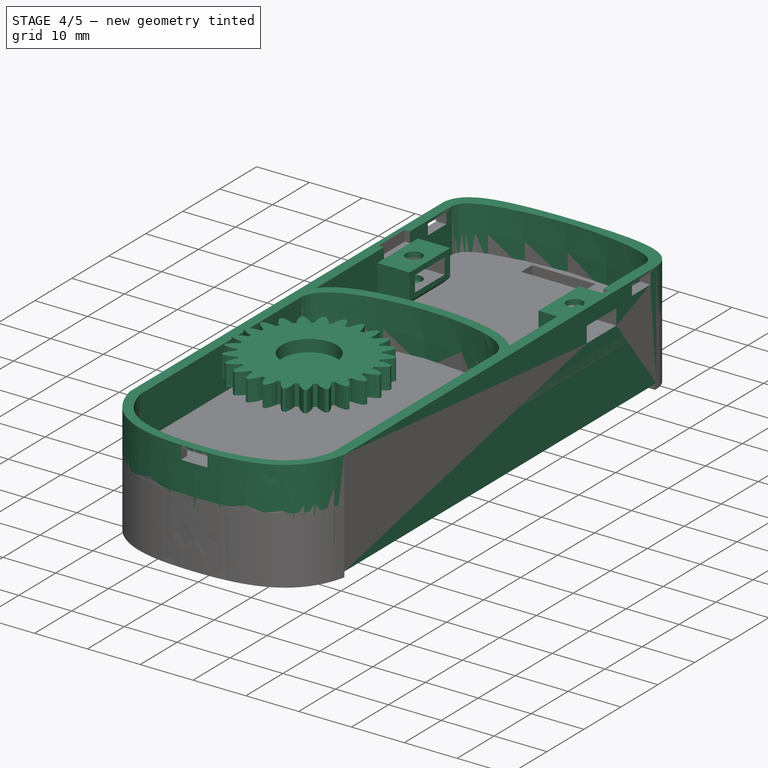
[diagram: stage 4 of 5 — iso view after this stage's code; geometry added in this stage tinted green]
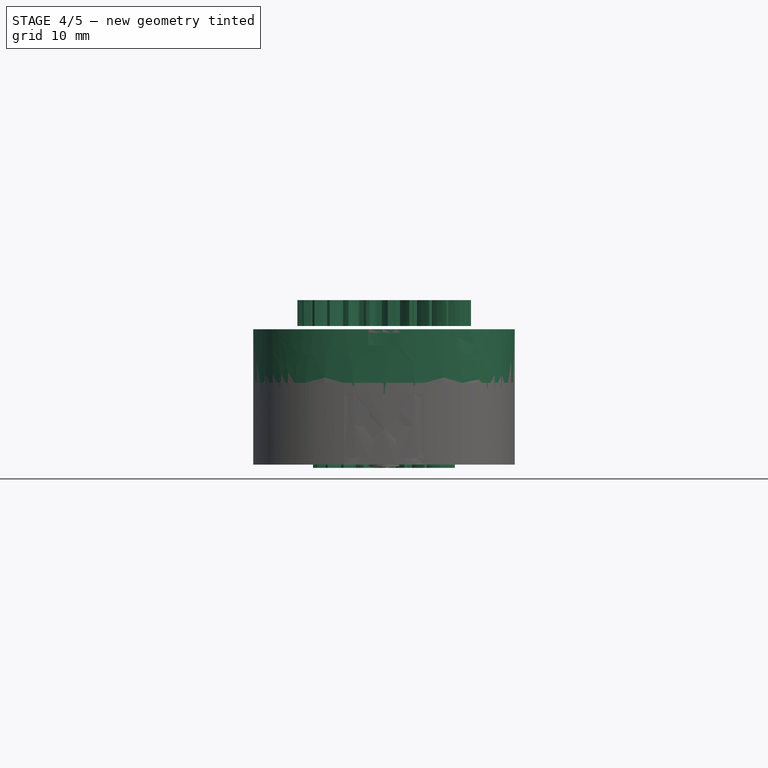
[diagram: stage 4 of 5 — front view after this stage's code; geometry added in this stage tinted green]
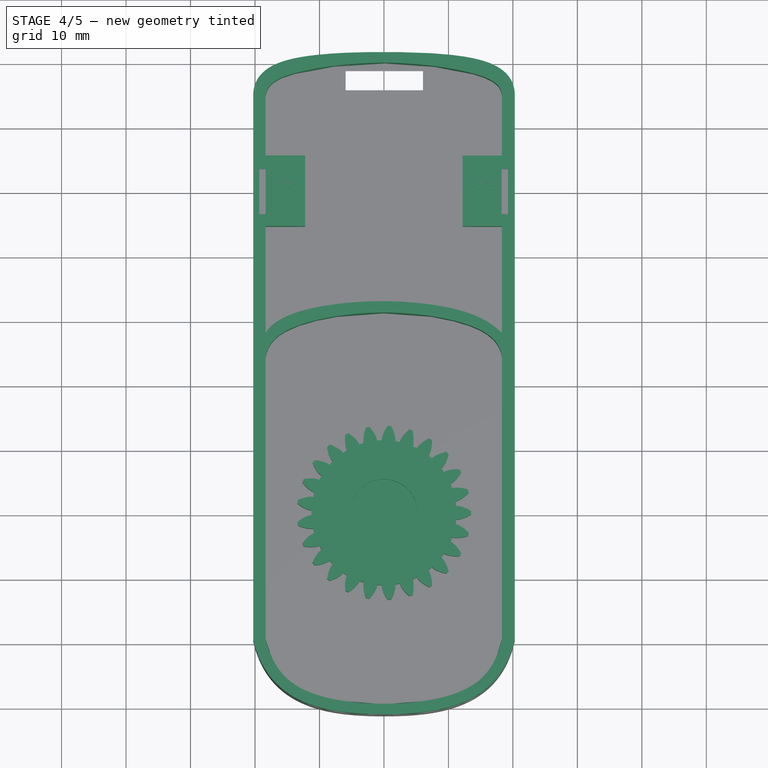
[diagram: stage 4 of 5 — top view after this stage's code; geometry added in this stage tinted green]
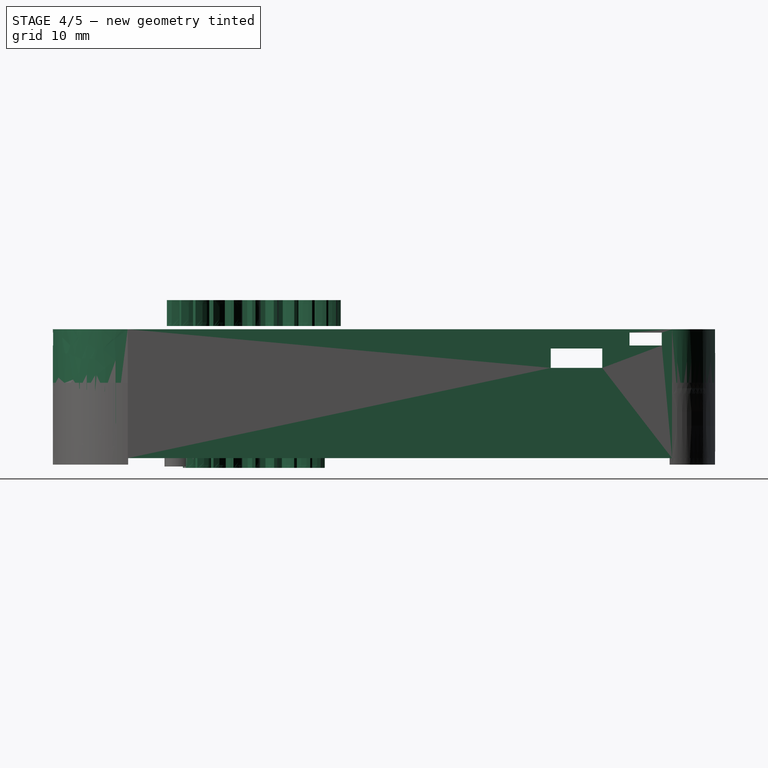
[diagram: stage 4 of 5 — right view after this stage's code; geometry added in this stage tinted green]
FEATURE [PartDesign::FeaturePython] involutegear002  # WARN: FeaturePython — macro-defined, semantics opaque (R4)
  AttacherType = Attacher::AttachEngine3D
  backlash = 0
  beta = 0
  clearance = 0.25
  da = 22
  df = 17.5
  double_helix = false
  dw = 20
  head = 0
  height = 3
  module = 1
  numpoints = 8
  pressure_angle = 25
  properties_from_tool = false
  reversed_backlash = false
  shift = 0
  simple = false
  teeth = 20
  transverse_pitch = 3.14159
  undercut = false
  version = 0.0.3
FEATURE [PartDesign::Body] Body016  label="Inner Template"
  Group = -> [Sketch005,Pad005]
  Origin = -> Origin022
  Placement = pos=(-0.2,0,1.5) rot=(0,0,1;0rad)
  Tip = -> Pad005
FEATURE [Sketcher::SketchObject] Sketch006
  FullyConstrained = false
  MapMode = 5
  Support = -> [XY_Plane023]
  sketch-geometry (28):
    g0-g6: Circle x7 (B-spline internal-alignment scaffolding for g7; pole/knot coordinates omitted)
    g7: BSplineCurve PolesCount=7 KnotsCount=5 Degree=3 IsPeriodic=0
    g8-g12: GeomPoint x5 (B-spline internal-alignment scaffolding for g7; pole/knot coordinates omitted)
    g13-g19: Circle x7 (B-spline internal-alignment scaffolding for g20; pole/knot coordinates omitted)
    g20: BSplineCurve PolesCount=7 KnotsCount=5 Degree=3 IsPeriodic=0
    g21-g25: GeomPoint x5 (B-spline internal-alignment scaffolding for g20; pole/knot coordinates omitted)
    g26: LineSegment StartX=-18.3511 StartY=27.9925 StartZ=0 EndX=-18.3511 EndY=24.2161 EndZ=0
    g27: LineSegment StartX=18.3008 StartY=24.225 StartZ=0 EndX=18.2911 EndY=27.991 EndZ=0
  constraints (25):
    c: Weight(g0) = 1
    c: Equal(g0,g1)
    c: Equal(g0,g2)
    c: Equal(g0,g3)
    c: PointOnObject(g3,g-2)
    c: Equal(g0,g4)
    c: Equal(g0,g5)
    c: Equal(g0,g6)
    c: InternalAlignment(g0-g6 -> g7) x7
    c: InternalAlignment(g8-g12 -> g7) x5
    c: Weight(g13) = 1
    c: Equal(g13,g14)
    c: Equal(g13,g15)
    c: Equal(g13,g16)
    c: PointOnObject(g16,g-2)
    c: Equal(g13,g17)
    c: Equal(g13,g18)
    c: Equal(g13,g19)
    c: InternalAlignment(g13-g19 -> g20) x7
    c: InternalAlignment(g21-g25 -> g20) x5
    c: Coincident(g26,g20)
    c: Coincident(g26,g7)
    c: Vertical(g26)
    c: Coincident(g27,g7)
    c: Coincident(g27,g20)
FEATURE [PartDesign::Pad] Pad006
  Direction = (1,1,1)
  Length = 20
  Length2 = 100
  Profile = -> Sketch006
  Type = 0
FEATURE [PartDesign::Body] Body019
  Group = -> [Cylinder005]
  Origin = -> Origin025
  Placement = pos=(0,0,10) rot=(0,0,1;0rad)
  Tip = -> Cylinder005
FEATURE [PartDesign::FeaturePython] involutegear003  # WARN: FeaturePython — macro-defined, semantics opaque (R4)
  AttacherType = Attacher::AttachEngine3D
  backlash = 0
  beta = 0
  clearance = 0.25
  da = 27
  df = 22.5
  double_helix = false
  dw = 25
  head = 0
  height = 4
  module = 1
  numpoints = 8
  pressure_angle = 25
  properties_from_tool = false
  reversed_backlash = false
  shift = 0
  simple = false
  teeth = 25
  transverse_pitch = 3.14159
  undercut = false
  version = 0.0.3
FEATURE [Part::Cylinder] Cylinder017
  Angle = 360
  AttacherType = Attacher::AttachEngine3D
  Height = 4
  Radius = 5.1
FEATURE [PartDesign::FeatureBase] BaseFeature005
  BaseFeature = -> Cylinder017
FEATURE [App::Part] Part005  label="blind_cog_shaft"
  Group = -> [Body010,Body001,Body002,Cut,Body041,Cylinder017,Cut003]
  Origin = -> Origin016
  Placement = pos=(0,-11.05,11) rot=(0,0,1;0rad)
FEATURE [Part::Cylinder] Cylinder018
  Angle = 360
  AttacherType = Attacher::AttachEngine3D
  Height = 4
  Radius = 5.2
FEATURE [PartDesign::FeatureBase] BaseFeature006
  BaseFeature = -> Cylinder018
FEATURE [PartDesign::Body] Body042  label="bearing_cutout001"
  BaseFeature = -> Cylinder018
  Group = -> [BaseFeature006]
  Origin = -> Origin053
  Placement = pos=(0,0,23.7) rot=(0,0,1;0rad)
  Tip = -> BaseFeature006
FEATURE [Part::Cut] Cut004  label="upper_cog_cut"
  Base = -> Body020
  Tool = -> Body042
FEATURE [Sketcher::SketchObject] Sketch
  FullyConstrained = false
  MapMode = 5
  Support = -> [XY_Plane065]
  sketch-geometry (5):
    g0: LineSegment StartX=-4.52898 StartY=4.49566 StartZ=0 EndX=4.45274 EndY=4.49566 EndZ=0
    g1: LineSegment StartX=4.45274 StartY=4.49566 StartZ=0 EndX=4.45274 EndY=-4.53455 EndZ=0
    g2: LineSegment StartX=4.45274 StartY=-4.53455 StartZ=0 EndX=-4.52898 EndY=-4.53455 EndZ=0
    g3: LineSegment StartX=-4.52898 StartY=-4.53455 StartZ=0 EndX=-4.52898 EndY=4.49566 EndZ=0
    g4: Circle CenterX=0 CenterY=0 CenterZ=0 NormalX=0 NormalY=0 NormalZ=1 AngleXU=0 Radius=1.53097
  constraints (8):
    c: Horizontal(g0)
    c: Coincident(g1,g0)
    c: Vertical(g1)
    c: Horizontal(g2)
    c: Coincident(g3,g2)
    c: Coincident(g3,g0)
    c: Vertical(g3)
    c: Coincident(g4,g-1)
FEATURE [PartDesign::Pad] Pad
  Direction = (1,1,1)
  Length = 5
  Length2 = 100
  Profile = -> Sketch
  Type = 0
FEATURE [PartDesign::Body] Body043
  Group = -> [Sketch,Pad]
  Origin = -> Origin055
  Tip = -> Pad
FEATURE [Part::Box] Box001  label="Cube001"
  AttacherType = Attacher::AttachEngine3D
  Height = 3
  Length = 9.5
  Width = 7
FEATURE [PartDesign::FeatureBase] BaseFeature007
  BaseFeature = -> Box001
FEATURE [PartDesign::Body] Body044
  BaseFeature = -> Box001
  Group = -> [BaseFeature007]
  Origin = -> Origin056
  Placement = pos=(-4,-3.5,1) rot=(0,0,1;0rad)
  Tip = -> BaseFeature007
FEATURE [Part::Cut] Cut005
  Base = -> Body043
  Placement = pos=(0,0.025,0) rot=(0,0,1;0rad)
  Tool = -> Body044
FEATURE [PartDesign::Body] Body045
  Origin = -> Origin057
  Placement = pos=(-5.55,-5.5,1.2e-15) rot=(1,0,0;4.71239rad)
FEATURE [App::Part] Part007  label="Nut Housing Template"
  Group = -> [Body043,Body044,Box001,Cut005,Body045]
  Origin = -> Origin054
FEATURE [Part::Box] Box002  label="Cube002"
  AttacherType = Attacher::AttachEngine3D
  Height = 3
  Length = 8.5
  Placement = pos=(-3,-4,1) rot=(0,0,1;0rad)
  Width = 8
FEATURE [PartDesign::FeatureBase] BaseFeature009
  BaseFeature = -> Box002
FEATURE [Sketcher::SketchObject] Sketch008
  FullyConstrained = false
  MapMode = 5
  Support = -> [XY_Plane068]
  sketch-geometry (5):
    g0: LineSegment StartX=-3.0003 StartY=5.47457 StartZ=0 EndX=5.04519 EndY=5.47457 EndZ=0
    g1: LineSegment StartX=5.04519 StartY=5.47457 StartZ=0 EndX=5.04519 EndY=-5.5 EndZ=0
    g2: LineSegment StartX=5.04519 StartY=-5.5 StartZ=0 EndX=-3.0003 EndY=-5.5 EndZ=0
    g3: LineSegment StartX=-3.0003 StartY=-5.5 StartZ=0 EndX=-3.0003 EndY=5.47457 EndZ=0
    g4: Circle CenterX=0 CenterY=0 CenterZ=0 NormalX=0 NormalY=0 NormalZ=1 AngleXU=0 Radius=1.53097
  constraints (8):
    c: Horizontal(g0)
    c: Coincident(g1,g0)
    c: Vertical(g1)
    c: Horizontal(g2)
    c: Coincident(g3,g2)
    c: Coincident(g3,g0)
    c: Vertical(g3)
    c: Coincident(g4,g-1)
FEATURE [PartDesign::Pad] Pad008
  Direction = (1,1,1)
  Length = 5
  Length2 = 100
  Profile = -> Sketch008
  Type = 0
FEATURE [Part::Wedge] Wedge002
  AttacherType = Attacher::AttachEngine3D
  Placement = pos=(5,5,0) rot=(0,0,1;0rad)
  X2max = 11
  X2min = 11
  Xmax = 11
  Xmin = 2.95
  Ymax = 8
  Ymin = 0
  Z2max = 11
  Z2min = 0
  Zmax = 11
  Zmin = 0
FEATURE [PartDesign::FeatureBase] BaseFeature010
  BaseFeature = -> Wedge002
FEATURE [PartDesign::Body] Body053  label="motor_fixing_cutout"
  BaseFeature = -> Box005
  Group = -> [BaseFeature014]
  Origin = -> Origin067
  Placement = pos=(-20.35,46.05,15.5) rot=(0,0,1;0rad)
  Tip = -> BaseFeature014
FEATURE [Part::FeaturePython] Tube003  # WARN: FeaturePython — macro-defined, semantics opaque (R4)
  AttacherType = Attacher::AttachEngine3D
  Height = 4
  InnerRadius = 5.2
  OuterRadius = 7.2
  Placement = pos=(0,43.45,7.55) rot=(0,0,1;0rad)
FEATURE [App::Part] Part011
  Origin = -> Origin071
FEATURE [App::Part] Part006  label="Secondary Cog shaft"
  Group = -> [Body,Body014,Body019,Body020,Body038,Cylinder001,Tube,Fusion001,Cut002,Cylinder018,Body042,Cut004,Part011]
  Origin = -> Origin017
  Placement = pos=(0,8.85,0) rot=(0,0,1;0rad)
FEATURE [Part::Cylinder] Cylinder019
  Angle = 360
  AttacherType = Attacher::AttachEngine3D
  Height = 4
  Placement = pos=(0,8.85,6.3) rot=(0,0,1;0rad)
  Radius = 2.4
FEATURE [Sketcher::SketchObject] Sketch010
  FullyConstrained = false
  MapMode = 5
  Support = -> [XY_Plane082]
  sketch-geometry (52):
    g0: LineSegment StartX=-18.3512 StartY=64.8653 StartZ=0 EndX=-18.3512 EndY=-19.5493 EndZ=0
    g1: LineSegment StartX=18.2843 StartY=64.8615 StartZ=0 EndX=18.2843 EndY=-19.5422 EndZ=0
    g2-g8: Circle x7 (B-spline internal-alignment scaffolding for g9; pole/knot coordinates omitted)
    g9: BSplineCurve PolesCount=7 KnotsCount=5 Degree=3 IsPeriodic=0
    g10-g14: GeomPoint x5 (B-spline internal-alignment scaffolding for g9; pole/knot coordinates omitted)
    g15-g21: Circle x7 (B-spline internal-alignment scaffolding for g22; pole/knot coordinates omitted)
    g22: BSplineCurve PolesCount=7 KnotsCount=5 Degree=3 IsPeriodic=0
    g23-g27: GeomPoint x5 (B-spline internal-alignment scaffolding for g22; pole/knot coordinates omitted)
    g28: LineSegment StartX=20.2908 StartY=64.8628 StartZ=0 EndX=20.2908 EndY=-19.5607 EndZ=0
    g29: LineSegment StartX=-20.2752 StartY=64.8046 StartZ=0 EndX=-20.2752 EndY=-19.5842 EndZ=0
    g30-g34: Circle x5 (B-spline internal-alignment scaffolding for g37; pole/knot coordinates omitted)
    g35: Circle CenterX=20.2934 CenterY=66.9981 CenterZ=0 NormalX=0 NormalY=0 NormalZ=1 AngleXU=0 Radius=1
    g36: Circle CenterX=20.2908 CenterY=64.8628 CenterZ=0 NormalX=0 NormalY=0 NormalZ=1 AngleXU=0 Radius=1
    g37: BSplineCurve PolesCount=7 KnotsCount=5 Degree=3 IsPeriodic=0
    g38: GeomPoint X=-20.2752 Y=64.8046 Z=0
    g39: GeomPoint X=-15.5518 Y=70.1328 Z=0
    g40: GeomPoint X=0.00361733 Y=71.5431 Z=0
    g41: GeomPoint X=15.5679 Y=70.1332 Z=0
    g42: GeomPoint X=20.2908 Y=64.8628 Z=0
    g43-g47: Circle x5 (B-spline internal-alignment scaffolding for g48; pole/knot coordinates omitted)
    g48: BSplineCurve PolesCount=5 KnotsCount=3 Degree=3 IsPeriodic=0
    g49: GeomPoint X=20.2908 Y=-19.5607 Z=0
    g50: GeomPoint X=0.00774 Y=-31.1619 Z=0
    g51: GeomPoint X=-20.2752 Y=-19.5842 Z=0
  constraints (51):
    c: Vertical(g0)
    c: Vertical(g1)
    c: Coincident(g9,g0)
    c: Weight(g2) = 1
    c: Equal(g2,g3)
    c: Equal(g2,g4)
    c: Equal(g2,g5)
    c: PointOnObject(g5,g-2)
    c: Equal(g2,g6)
    c: Equal(g2,g7)
    c: Equal(g2,g8)
    c: Coincident(g9,g1)
    c: InternalAlignment(g2-g8 -> g9) x7
    c: InternalAlignment(g10-g14 -> g9) x5
    c: Coincident(g22,g0)
    c: Weight(g15) = 1
    c: Equal(g15,g16)
    c: Equal(g15,g17)
    c: Equal(g15,g18)
    c: PointOnObject(g18,g-2)
    c: Equal(g15,g19)
    c: Equal(g15,g20)
    c: Equal(g15,g21)
    c: Coincident(g22,g1)
    c: InternalAlignment(g15-g21 -> g22) x7
    c: InternalAlignment(g23-g27 -> g22) x5
    c: Vertical(g28)
    c: Vertical(g29)
    c: Coincident(g37,g29)
    c: Weight(g30) = 1
    c: Equal(g30,g31)
    c: Equal(g30,g32)
    c: Equal(g30,g33)
    c: PointOnObject(g33,g-2)
    c: Equal(g30,g34)
    c: Equal(g30,g35)
    c: Equal(g30,g36)
    c: Coincident(g37,g28)
    c: InternalAlignment(g30-g34 -> g37) x5
    c: Coincident(g48,g28)
    c: Weight(g43) = 1
    c: Equal(g43,g44)
    c: Equal(g43,g45)
    c: PointOnObject(g45,g-2)
    c: Equal(g43,g46)
    c: Equal(g43,g47)
    c: Coincident(g48,g29)
    c: InternalAlignment(g43-g47 -> g48) x5
    c: InternalAlignment(g49,g48)
    c: InternalAlignment(g50,g48)
    c: InternalAlignment(g51,g48)
FEATURE [PartDesign::Pad] Pad010
  Direction = (1,1,1)
  Length = 20
  Length2 = 100
  Profile = -> Sketch010
  Type = 0
FEATURE [PartDesign::Body] Body056  label="housing_middle_top"
  Group = -> [Sketch012,Pad012]
  Origin = -> Origin074
  Placement = pos=(0,0,11.5) rot=(0,0,1;0rad)
  Tip = -> Pad012
FEATURE [Part::Cylinder] Cylinder020
  Angle = 360
  AttacherType = Attacher::AttachEngine3D
  Height = 3.5
  Placement = pos=(0,8.85,8.3) rot=(0,0,1;0rad)
  Radius = 10
FEATURE [PartDesign::Body] Body057
  Group = -> [Box008]
  Origin = -> Origin075
  Placement = pos=(18.25,46.4,19.5) rot=(0,0,1;0rad)
  Tip = -> Box008
FEATURE [Part::Cut] Cut010
  Base = -> Body048
  Tool = -> Body046
FEATURE [App::Part] Part008  label="motor_fixing_right"
  Group = -> [Body048,Body046,Box002,Body047,Wedge002,Cut010]
  Origin = -> Origin060
  Placement = pos=(15.2,50.05,14.5) rot=(0,0,1;0rad)
FEATURE [Part::Box] Box009  label="Cube007"
  AttacherType = Attacher::AttachEngine3D
  Height = 3
  Length = 8.5
  Placement = pos=(-3,-4,1) rot=(0,0,1;0rad)
  Width = 8
FEATURE [PartDesign::FeatureBase] BaseFeature015
  BaseFeature = -> Box009
FEATURE [Part::Wedge] Wedge003
  AttacherType = Attacher::AttachEngine3D
  Placement = pos=(5,5,0) rot=(0,0,1;0rad)
  X2max = 11
  X2min = 11
  Xmax = 11
  Xmin = 2.95
  Ymax = 8
  Ymin = 0
  Z2max = 11
  Z2min = 0
  Zmax = 11
  Zmin = 0
FEATURE [PartDesign::FeatureBase] BaseFeature016
  BaseFeature = -> Wedge003
FEATURE [PartDesign::Body] Body059
  BaseFeature = -> Box009
  Group = -> [BaseFeature015]
  Origin = -> Origin077
  Placement = pos=(-3,-4,1) rot=(0,0,1;0rad)
  Tip = -> BaseFeature015
FEATURE [PartDesign::Body] Body060
  BaseFeature = -> Wedge003
  Group = -> [BaseFeature016]
  Origin = -> Origin078
  Placement = pos=(-5.95,-5.5,1e-15) rot=(-1,0,0;1.5708rad)
  Tip = -> BaseFeature016
FEATURE [PartDesign::Body] Body061
  Group = -> [Sketch013,Pad013]
  Origin = -> Origin080
  Tip = -> Pad013
FEATURE [Part::Cut] Cut011
  Base = -> Body061
  Tool = -> Body059
FEATURE [App::Part] Part012  label="motor_fixing_right001"
  Group = -> [Body061,Body059,Box009,Body060,Wedge003,Cut011]
  Origin = -> Origin079
  Placement = pos=(-15.225,50.05,14.5) rot=(0,0,1;3.14159rad)
FEATURE [Part::MultiFuse] Fusion002  label="fusion_housing"
  Shapes = -> [Body017,Body054,Part008,Part012]
FEATURE [Part::Cut] Cut012  label="housing_base_final"
  Base = -> Fusion002
  Tool = -> Fusion003
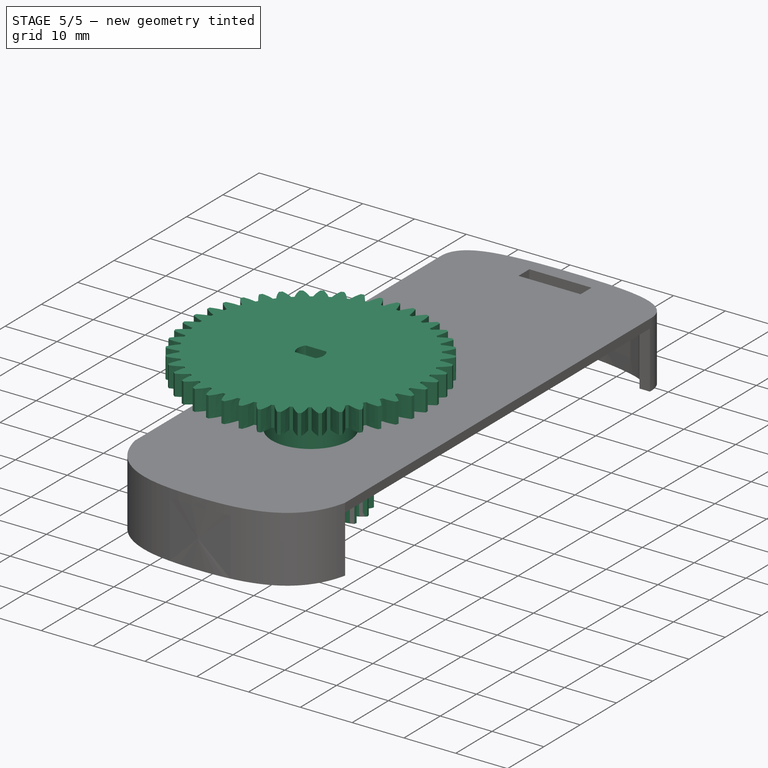
[diagram: stage 5 of 5 — iso view after this stage's code; geometry added in this stage tinted green]
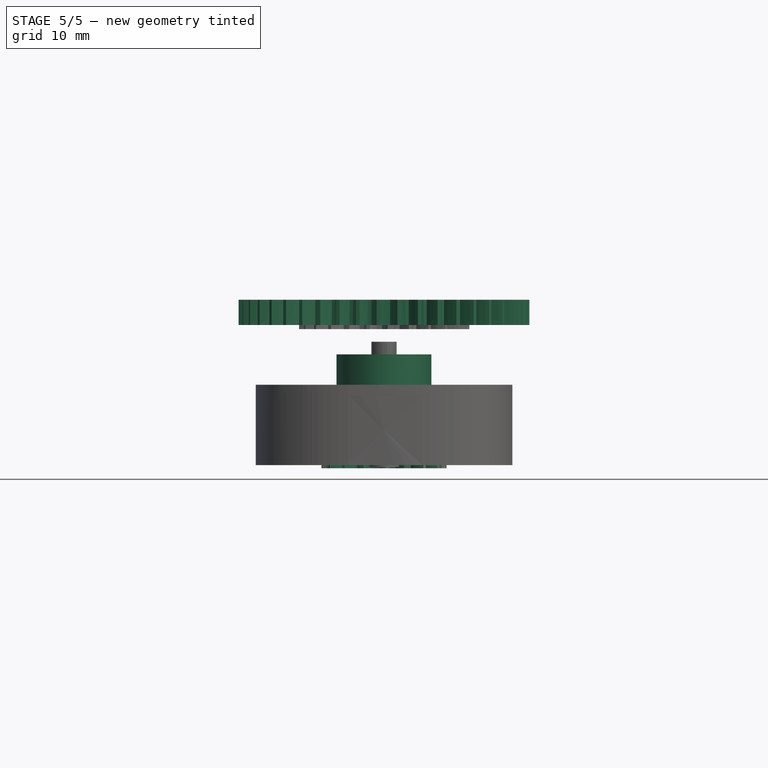
[diagram: stage 5 of 5 — front view after this stage's code; geometry added in this stage tinted green]
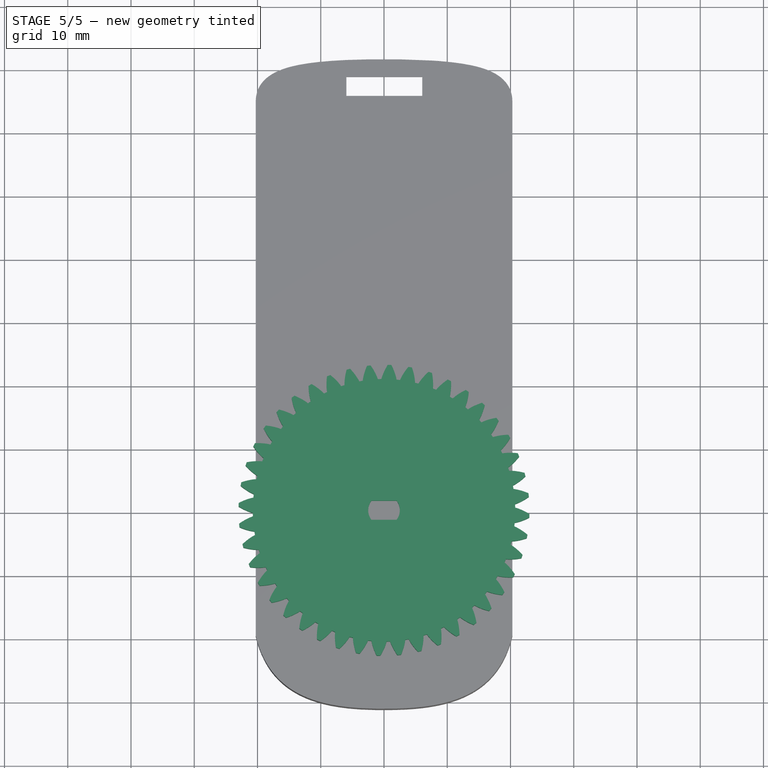
[diagram: stage 5 of 5 — top view after this stage's code; geometry added in this stage tinted green]
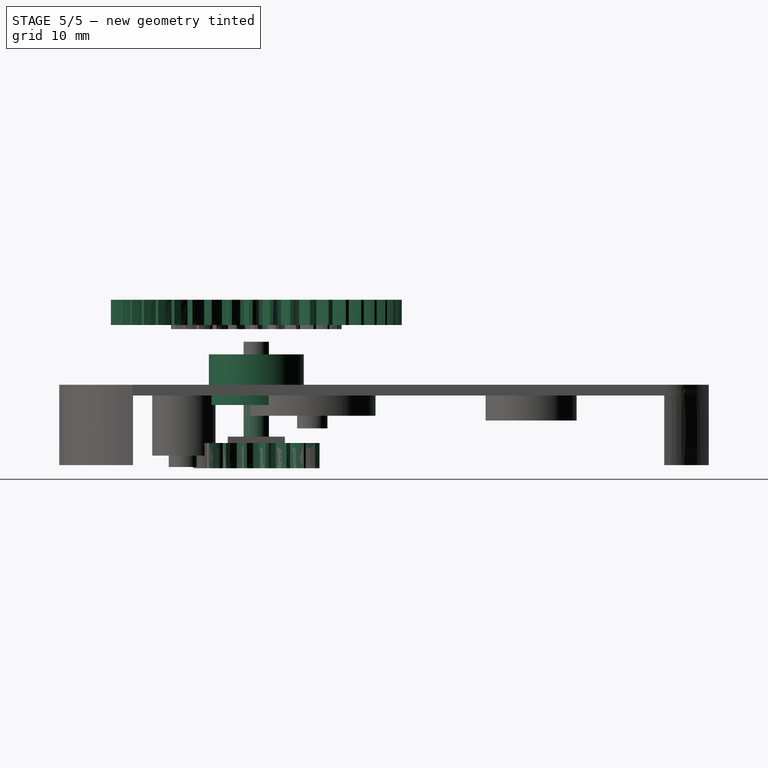
[diagram: stage 5 of 5 — right view after this stage's code; geometry added in this stage tinted green]
FEATURE [Part::Feature] stepper_24BYJ_48_keyshot
  Placement = pos=(0,6.5,1.5) rot=(0,0.707107,0.707107;3.14159rad)
  shape: bbox 38.46 x 48.66 x 30.5 mm, 597 faces, 0 solids (baked)
FEATURE [PartDesign::FeaturePython] involutegear  # WARN: FeaturePython — macro-defined, semantics opaque (R4)
  AttacherType = Attacher::AttachEngine3D
  Placement = pos=(0,0,0) rot=(0,0,1;0.174533rad)
  backlash = 0
  beta = 0
  clearance = 0.25
  da = 20
  df = 15.5
  double_helix = false
  dw = 18
  head = 0
  height = 4
  module = 1
  numpoints = 6
  pressure_angle = 25
  properties_from_tool = false
  reversed_backlash = false
  shift = 0
  simple = false
  teeth = 18
  transverse_pitch = 3.14159
  undercut = false
  version = 0.0.3
FEATURE [PartDesign::Body] Body  label="lower_cog"
  Group = -> [involutegear]
  Origin = -> Origin001
  Placement = pos=(0,0,18) rot=(0,0,1;0.174533rad)
  Tip = -> involutegear
FEATURE [Part::Cylinder] Cylinder001  label="cyl_lower_shaft_pin"
  Angle = 360
  AttacherType = Attacher::AttachEngine3D
  Height = 15
  Placement = pos=(0,0,1.5) rot=(0,0,1;0rad)
  Radius = 2.65
FEATURE [Part::FeaturePython] Tube  label="lower_shaft_bearing_tube"  # WARN: FeaturePython — macro-defined, semantics opaque (R4)
  AttacherType = Attacher::AttachEngine3D
  Height = 3.9
  InnerRadius = 2.5
  OuterRadius = 5.2
  Placement = pos=(0,0,9) rot=(0,0,1;0rad)
FEATURE [Image::ImagePlane] ImagePlane
  Placement = pos=(0.5,4.8,0) rot=(0,0,1;0rad)
  XSize = 77
  YSize = 108.19
FEATURE [PartDesign::FeaturePython] involutegear001  # WARN: FeaturePython — macro-defined, semantics opaque (R4)
  AttacherType = Attacher::AttachEngine3D
  backlash = 0
  beta = 0
  clearance = 0.25
  da = 10.27
  df = 6.715
  double_helix = false
  dw = 8.69
  head = 0
  height = 3
  module = 0.79
  numpoints = 8
  pressure_angle = 32
  properties_from_tool = false
  reversed_backlash = false
  shift = 0
  simple = false
  teeth = 11
  transverse_pitch = 2.48186
  undercut = true
  version = 0.0.3
FEATURE [PartDesign::AdditiveCylinder] Cylinder
  Angle = 360
  AttacherType = Attacher::AttachEngine3D
  Height = 1
  Radius = 3.5
FEATURE [PartDesign::Body] Body001
  Group = -> [involutegear001]
  Origin = -> Origin002
  Tip = -> involutegear001
FEATURE [PartDesign::AdditiveCylinder] Cylinder002
  Angle = 360
  AttacherType = Attacher::AttachEngine3D
  Height = 7
  Radius = 7
FEATURE [PartDesign::Body] Body010
  Group = -> [Cylinder002]
  Origin = -> Origin015
  Tip = -> Cylinder002
FEATURE [Part::Cut] Cut
  Base = -> Body010
  Tool = -> Body001
FEATURE [PartDesign::Body] Body002
  Group = -> [involutegear002]
  Origin = -> Origin003
  Placement = pos=(0,0,7) rot=(0,0,1;0rad)
  Tip = -> involutegear002
FEATURE [Sketcher::SketchObject] Sketch003
  FullyConstrained = false
  MapMode = 5
  Support = -> [XY_Plane019]
  sketch-geometry (52):
    g0: LineSegment StartX=-18.3189 StartY=39.0217 StartZ=0 EndX=-18.3189 EndY=-19.5493 EndZ=0
    g1: LineSegment StartX=18.2996 StartY=39.0178 StartZ=0 EndX=18.2996 EndY=-19.5422 EndZ=0
    g2-g8: Circle x7 (B-spline internal-alignment scaffolding for g9; pole/knot coordinates omitted)
    g9: BSplineCurve PolesCount=7 KnotsCount=5 Degree=3 IsPeriodic=0
    g10-g14: GeomPoint x5 (B-spline internal-alignment scaffolding for g9; pole/knot coordinates omitted)
    g15-g21: Circle x7 (B-spline internal-alignment scaffolding for g22; pole/knot coordinates omitted)
    g22: BSplineCurve PolesCount=7 KnotsCount=5 Degree=3 IsPeriodic=0
    g23-g27: GeomPoint x5 (B-spline internal-alignment scaffolding for g22; pole/knot coordinates omitted)
    g28: LineSegment StartX=20.2908 StartY=64.8628 StartZ=0 EndX=20.2908 EndY=-19.5607 EndZ=0
    g29: LineSegment StartX=-20.2752 StartY=64.8046 StartZ=0 EndX=-20.2752 EndY=-19.5842 EndZ=0
    g30-g36: Circle x7 (B-spline internal-alignment scaffolding for g37; pole/knot coordinates omitted)
    g37: BSplineCurve PolesCount=7 KnotsCount=5 Degree=3 IsPeriodic=0
    g38-g42: GeomPoint x5 (B-spline internal-alignment scaffolding for g37; pole/knot coordinates omitted)
    g43-g47: Circle x5 (B-spline internal-alignment scaffolding for g48; pole/knot coordinates omitted)
    g48: BSplineCurve PolesCount=5 KnotsCount=3 Degree=3 IsPeriodic=0
    g49: GeomPoint X=20.2908 Y=-19.5607 Z=0
    g50: GeomPoint X=0.00774 Y=-31.1619 Z=0
    g51: GeomPoint X=-20.2752 Y=-19.5842 Z=0
  constraints (52):
    c: Vertical(g0)
    c: Vertical(g1)
    c: Coincident(g9,g0)
    c: Weight(g2) = 1
    c: Equal(g2,g3)
    c: Equal(g2,g4)
    c: Equal(g2,g5)
    c: PointOnObject(g5,g-2)
    c: Equal(g2,g6)
    c: Equal(g2,g7)
    c: Equal(g2,g8)
    c: Coincident(g9,g1)
    c: InternalAlignment(g2-g8 -> g9) x7
    c: InternalAlignment(g10-g14 -> g9) x5
    c: Coincident(g22,g0)
    c: Weight(g15) = 1
    c: Equal(g15,g16)
    c: Equal(g15,g17)
    c: Equal(g15,g18)
    c: PointOnObject(g18,g-2)
    c: Equal(g15,g19)
    c: Equal(g15,g20)
    c: Equal(g15,g21)
    c: Coincident(g22,g1)
    c: InternalAlignment(g15-g21 -> g22) x7
    c: InternalAlignment(g23-g27 -> g22) x5
    c: Vertical(g28)
    c: Vertical(g29)
    c: Coincident(g37,g29)
    c: Weight(g30) = 1
    c: Equal(g30,g31)
    c: Equal(g30,g32)
    c: Equal(g30,g33)
    c: PointOnObject(g33,g-2)
    c: Equal(g30,g34)
    c: Equal(g30,g35)
    c: Equal(g30,g36)
    c: Coincident(g37,g28)
    c: InternalAlignment(g30-g36 -> g37) x7
    c: InternalAlignment(g38-g42 -> g37) x5
    c: Coincident(g48,g28)
    c: Weight(g43) = 1
    c: Equal(g43,g44)
    c: Equal(g43,g45)
    c: PointOnObject(g45,g-2)
    c: Equal(g43,g46)
    c: Equal(g43,g47)
    c: Coincident(g48,g29)
    c: InternalAlignment(g43-g47 -> g48) x5
    c: InternalAlignment(g49,g48)
    c: InternalAlignment(g50,g48)
    c: InternalAlignment(g51,g48)
FEATURE [PartDesign::Pad] Pad003
  Direction = (1,1,1)
  Length = 1.7
  Length2 = 100
  Profile = -> Sketch003
  Type = 0
FEATURE [PartDesign::Body] Body012  label="bottom_layer"
  Group = -> [Sketch003,Pad003]
  Origin = -> Origin019
  Placement = pos=(0,0,-0.2) rot=(0,0,1;0rad)
  Tip = -> Pad003
FEATURE [Part::FeaturePython] Tube002  label="motor_base_tube"  # WARN: FeaturePython — macro-defined, semantics opaque (R4)
  AttacherType = Attacher::AttachEngine3D
  Height = 2
  InnerRadius = 12.2
  OuterRadius = 14
FEATURE [PartDesign::FeatureBase] BaseFeature
  BaseFeature = -> Tube002
FEATURE [PartDesign::Body] Body013  label="Motor Base"
  BaseFeature = -> Tube002
  Group = -> [BaseFeature]
  Origin = -> Origin
  Placement = pos=(0,49.95,1.5) rot=(0,0,1;0rad)
  Tip = -> BaseFeature
FEATURE [Sketcher::SketchObject] Sketch005
  FullyConstrained = false
  MapMode = 5
  Support = -> [XY_Plane022]
  sketch-geometry (52):
    g0: LineSegment StartX=-18.014 StartY=24.1946 StartZ=0 EndX=-18.014 EndY=-19.5697 EndZ=0
    g1: LineSegment StartX=18.5581 StartY=24.2036 StartZ=0 EndX=18.5581 EndY=-19.5498 EndZ=0
    g2-g8: Circle x7 (B-spline internal-alignment scaffolding for g9; pole/knot coordinates omitted)
    g9: BSplineCurve PolesCount=7 KnotsCount=5 Degree=3 IsPeriodic=0
    g10-g14: GeomPoint x5 (B-spline internal-alignment scaffolding for g9; pole/knot coordinates omitted)
    g15-g21: Circle x7 (B-spline internal-alignment scaffolding for g22; pole/knot coordinates omitted)
    g22: BSplineCurve PolesCount=7 KnotsCount=5 Degree=3 IsPeriodic=0
    g23-g27: GeomPoint x5 (B-spline internal-alignment scaffolding for g22; pole/knot coordinates omitted)
    g28: LineSegment StartX=20.6006 StartY=24.1236 StartZ=0 EndX=20.6006 EndY=-19.5892 EndZ=0
    g29: LineSegment StartX=-20.0084 StartY=24.1038 StartZ=0 EndX=-20.0084 EndY=-19.5743 EndZ=0
    g30-g36: Circle x7 (B-spline internal-alignment scaffolding for g37; pole/knot coordinates omitted)
    g37: BSplineCurve PolesCount=7 KnotsCount=5 Degree=3 IsPeriodic=0
    g38-g42: GeomPoint x5 (B-spline internal-alignment scaffolding for g37; pole/knot coordinates omitted)
    g43-g47: Circle x5 (B-spline internal-alignment scaffolding for g48; pole/knot coordinates omitted)
    g48: BSplineCurve PolesCount=5 KnotsCount=3 Degree=3 IsPeriodic=0
    g49: GeomPoint X=20.6006 Y=-19.5892 Z=0
    g50: GeomPoint X=0.0058855 Y=-30.9987 Z=0
    g51: GeomPoint X=-20.0084 Y=-19.5743 Z=0
  constraints (52):
    c: Vertical(g0)
    c: Vertical(g1)
    c: Coincident(g9,g0)
    c: Weight(g2) = 1
    c: Equal(g2,g3)
    c: Equal(g2,g4)
    c: Equal(g2,g5)
    c: PointOnObject(g5,g-2)
    c: Equal(g2,g6)
    c: Equal(g2,g7)
    c: Equal(g2,g8)
    c: Coincident(g9,g1)
    c: InternalAlignment(g2-g8 -> g9) x7
    c: InternalAlignment(g10-g14 -> g9) x5
    c: Coincident(g22,g0)
    c: Weight(g15) = 1
    c: Equal(g15,g16)
    c: Equal(g15,g17)
    c: Equal(g15,g18)
    c: PointOnObject(g18,g-2)
    c: Equal(g15,g19)
    c: Equal(g15,g20)
    c: Equal(g15,g21)
    c: Coincident(g22,g1)
    c: InternalAlignment(g15-g21 -> g22) x7
    c: InternalAlignment(g23-g27 -> g22) x5
    c: Vertical(g28)
    c: Vertical(g29)
    c: Coincident(g37,g29)
    c: Weight(g30) = 1
    c: Equal(g30,g31)
    c: Equal(g30,g32)
    c: Equal(g30,g33)
    c: PointOnObject(g33,g-2)
    c: Equal(g30,g34)
    c: Equal(g30,g35)
    c: Equal(g30,g36)
    c: Coincident(g37,g28)
    c: InternalAlignment(g30-g36 -> g37) x7
    c: InternalAlignment(g38-g42 -> g37) x5
    c: Coincident(g48,g28)
    c: Weight(g43) = 1
    c: Equal(g43,g44)
    c: Equal(g43,g45)
    c: PointOnObject(g45,g-2)
    c: Equal(g43,g46)
    c: Equal(g43,g47)
    c: Coincident(g48,g29)
    c: InternalAlignment(g43-g47 -> g48) x5
    c: InternalAlignment(g49,g48)
    c: InternalAlignment(g50,g48)
    c: InternalAlignment(g51,g48)
FEATURE [PartDesign::Pad] Pad005
  Direction = (1,1,1)
  Length = 1.5
  Length2 = 100
  Profile = -> Sketch005
  Type = 0
FEATURE [PartDesign::Body] Body017  label="inner_housing"
  Group = -> [Sketch006,Pad006]
  Origin = -> Origin023
  Placement = pos=(0,0,1.5) rot=(0,0,1;0rad)
  Tip = -> Pad006
FEATURE [Part::Cylinder] Cylinder004
  Angle = 360
  AttacherType = Attacher::AttachEngine3D
  Height = 20
  Placement = pos=(0,40.275,1.5) rot=(0,0,1;0rad)
  Radius = 2
FEATURE [PartDesign::FeatureBase] BaseFeature001
  BaseFeature = -> Cylinder004
FEATURE [PartDesign::Body] Body018
  BaseFeature = -> Cylinder004
  Group = -> [BaseFeature001]
  Origin = -> Origin024
  Placement = pos=(0,36.5,20.5) rot=(0,0,1;0rad)
  Tip = -> BaseFeature001
FEATURE [PartDesign::AdditiveCylinder] Cylinder005
  Angle = 360
  AttacherType = Attacher::AttachEngine3D
  Height = 8
  Radius = 7.5
FEATURE [PartDesign::Body] Body020  label="upper_cog"
  Group = -> [involutegear003]
  Origin = -> Origin026
  Placement = pos=(0,0,22) rot=(0,0,1;0rad)
  Tip = -> involutegear003
FEATURE [PartDesign::FeaturePython] involutegear004  # WARN: FeaturePython — macro-defined, semantics opaque (R4)
  AttacherType = Attacher::AttachEngine3D
  backlash = 0
  beta = 0
  clearance = 0.25
  da = 46
  df = 41.5
  double_helix = false
  dw = 44
  head = 0
  height = 4
  module = 1
  numpoints = 6
  pressure_angle = 25
  properties_from_tool = false
  reversed_backlash = false
  shift = 0
  simple = false
  teeth = 44
  transverse_pitch = 3.14159
  undercut = false
  version = 0.0.3
FEATURE [PartDesign::Body] Body021
  Group = -> [involutegear004]
  Origin = -> Origin028
  Placement = pos=(0,0,22.65) rot=(0,0,1;0.10472rad)
  Tip = -> involutegear004
FEATURE [Part::Cylinder] Cylinder006
  Angle = 360
  AttacherType = Attacher::AttachEngine3D
  Height = 8.5
  Radius = 2.5
FEATURE [PartDesign::FeatureBase] BaseFeature002
  BaseFeature = -> Cylinder006
FEATURE [PartDesign::Body] Body022
  BaseFeature = -> Cylinder006
  Group = -> [BaseFeature002]
  Origin = -> Origin029
  Placement = pos=(5e-15,0,22.1) rot=(0,0,1;3.14159rad)
  Tip = -> BaseFeature002
FEATURE [Part::Box] Box  label="Cube"
  AttacherType = Attacher::AttachEngine3D
  Height = 6
  Length = 5
  Placement = pos=(-2.5,-1.5,24.6) rot=(0,0,1;0rad)
  Width = 3
FEATURE [Part::Common] Common
  Base = -> Body022
  Tool = -> Box
FEATURE [Part::Cylinder] Cylinder007
  Angle = 360
  AttacherType = Attacher::AttachEngine3D
  Height = 2.5
  Placement = pos=(0,0,22.1) rot=(0,0,1;0rad)
  Radius = 2.5
FEATURE [Part::Fuse] Fusion
  Base = -> Common
  Tool = -> Cylinder007
FEATURE [Part::Cut] Cut001
  Base = -> Body021
  Tool = -> Fusion
FEATURE [PartDesign::AdditiveCylinder] Cylinder014
  Angle = 360
  AttacherType = Attacher::AttachEngine3D
  Height = 1
  Radius = 3.5
FEATURE [PartDesign::AdditiveCylinder] Cylinder016
  Angle = 360
  AttacherType = Attacher::AttachEngine3D
  BaseFeature = -> Cylinder014
  Height = 4
  Radius = 2.5
FEATURE [PartDesign::Body] Body037
  Group = -> [Cylinder014,Cylinder016]
  Origin = -> Origin048
  Placement = pos=(0,0,32) rot=(0,0,1;0rad)
  Tip = -> Cylinder016
FEATURE [App::Part] Part  label="stepper_motor_shaft"
  Group = -> [Body021,Body022,Box,Cylinder007,Common,Fusion,Cut001,Body037,Cylinder006,stepper_24BYJ_48_keyshot]
  Origin = -> Origin027
  Placement = pos=(0,43.45,-0.6) rot=(0,0,1;0rad)
FEATURE [PartDesign::FeatureBase] BaseFeature003
  BaseFeature = -> Cylinder001
FEATURE [PartDesign::Body] Body014  label="lower_shaft_pin"
  BaseFeature = -> Cylinder001
  Group = -> [BaseFeature003]
  Origin = -> Origin020
  Placement = pos=(0,0,1.5) rot=(0,0,1;0rad)
  Tip = -> BaseFeature003
FEATURE [PartDesign::FeatureBase] BaseFeature004
  BaseFeature = -> Tube
FEATURE [PartDesign::Body] Body038  label="lower_shaft_bearing"
  BaseFeature = -> Tube
  Group = -> [BaseFeature004]
  Origin = -> Origin049
  Placement = pos=(0,0,9) rot=(0,0,1;0rad)
  Tip = -> BaseFeature004
FEATURE [Part::Fuse] Fusion001
  Base = -> Body014
  Tool = -> Body038
FEATURE [Part::Cut] Cut002
  Base = -> Body019
  Tool = -> Fusion001
FEATURE [PartDesign::Body] Body041  label="bearing_cutout"
  BaseFeature = -> Cylinder017
  Group = -> [BaseFeature005]
  Origin = -> Origin052
  Placement = pos=(0,0,7) rot=(0,0,1;0rad)
  Tip = -> BaseFeature005
FEATURE [Part::Cut] Cut003
  Base = -> Body002
  Tool = -> Body041
FEATURE [App::Part] Part004  label="housing_base"
  Group = -> [Tube002,Body013,Body016,Body017,Body052,Box004,Box005,Body053,Body054,Fusion002,Fusion003,Part008,Box011,Body057,Body058,Part012,Box012,Box010,Cut012,Body012]
  Origin = -> Origin011
FEATURE [PartDesign::AdditiveCylinder] Cylinder003
  Angle = 360
  AttacherType = Attacher::AttachEngine3D
  BaseFeature = -> Cylinder
  Height = 4
  Radius = 2.5
  Support = -> [Part005,Part004]
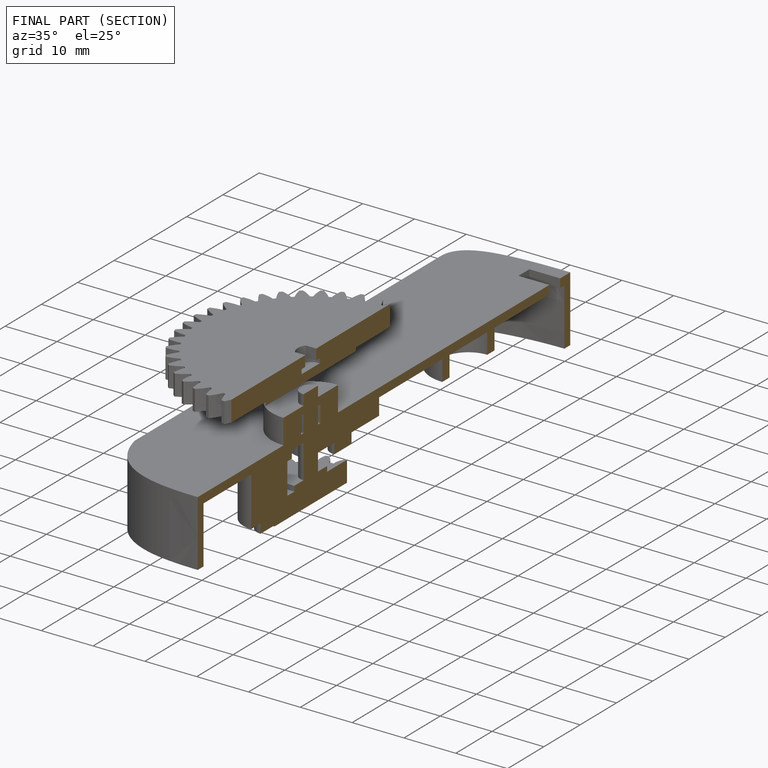
[diagram: finished part — half-section view (interior)]
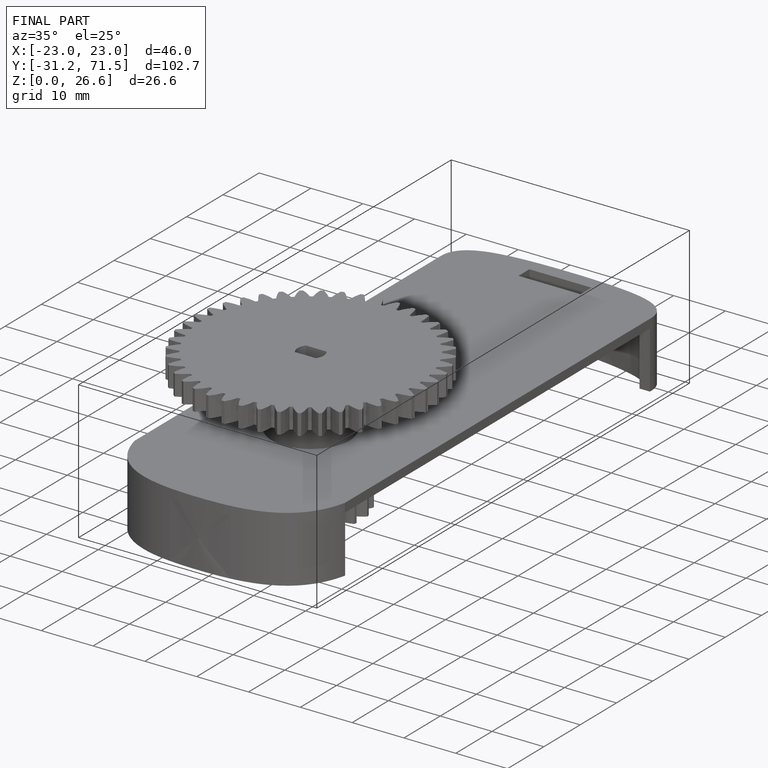
[diagram: finished part — iso view with bounding-box wireframe]
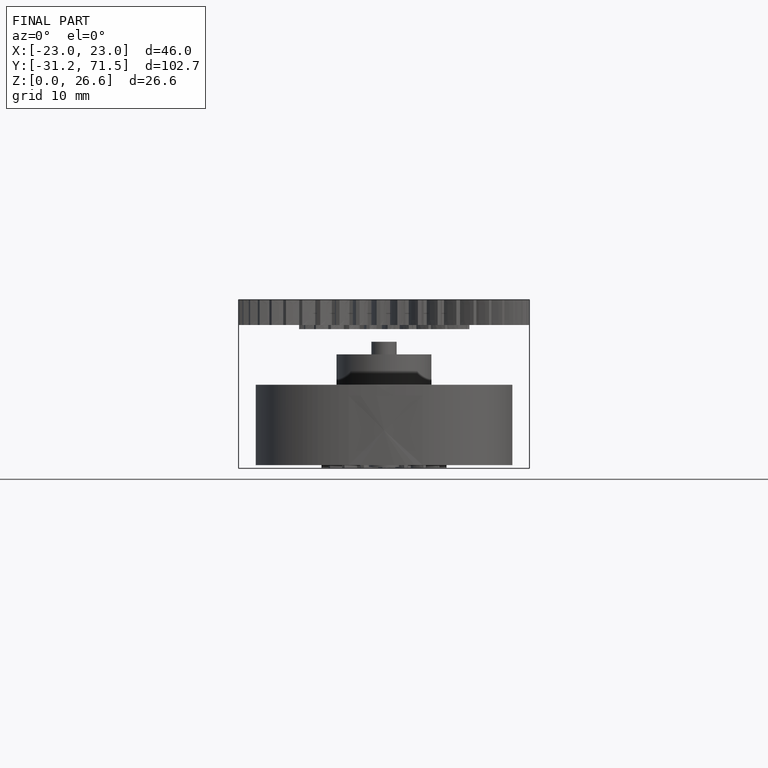
[diagram: finished part — front view with bounding-box wireframe]
